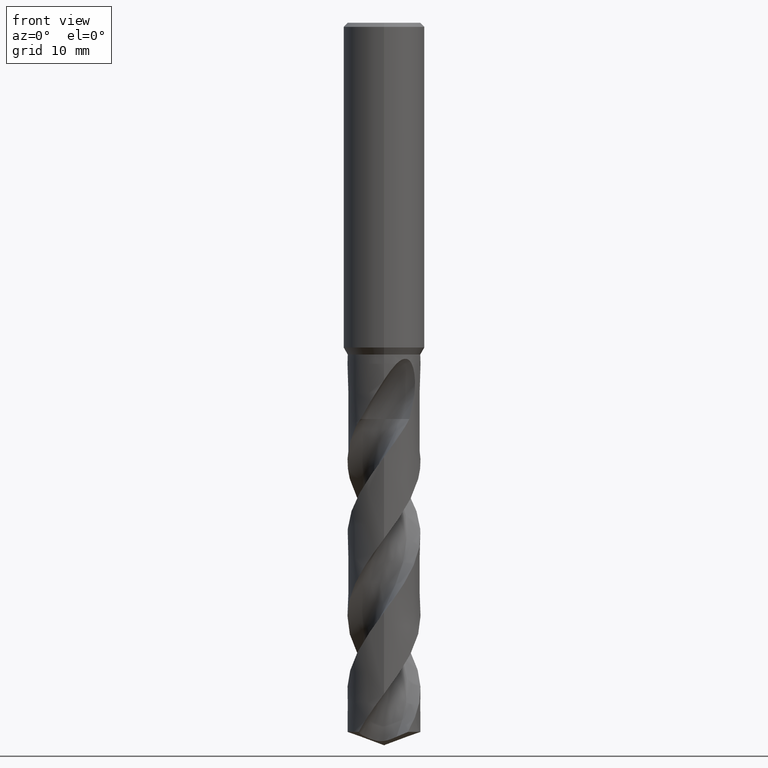
[diagram: clean part render]
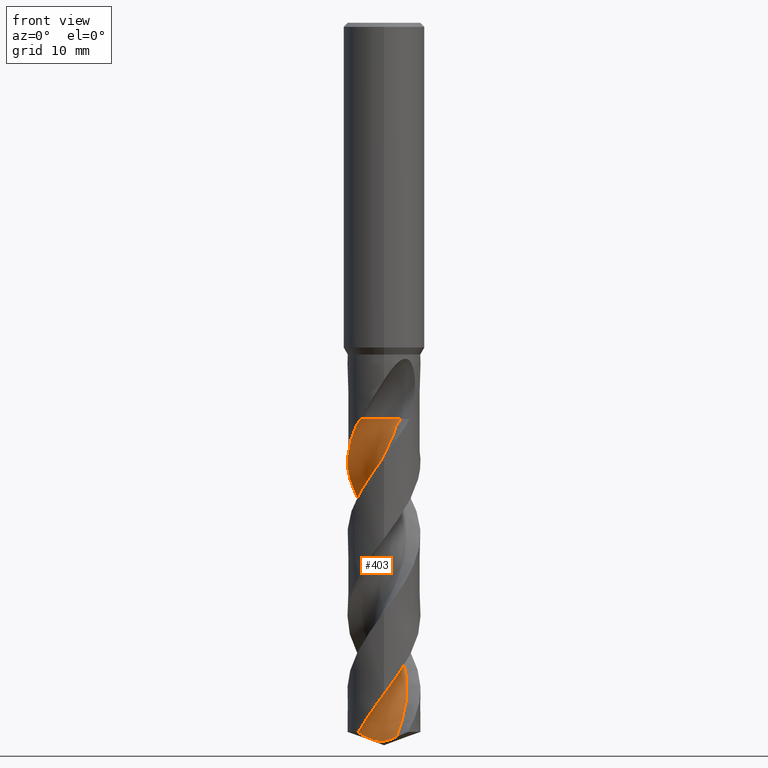
[diagram: same view with one face highlighted and labeled with its STEP entity id]
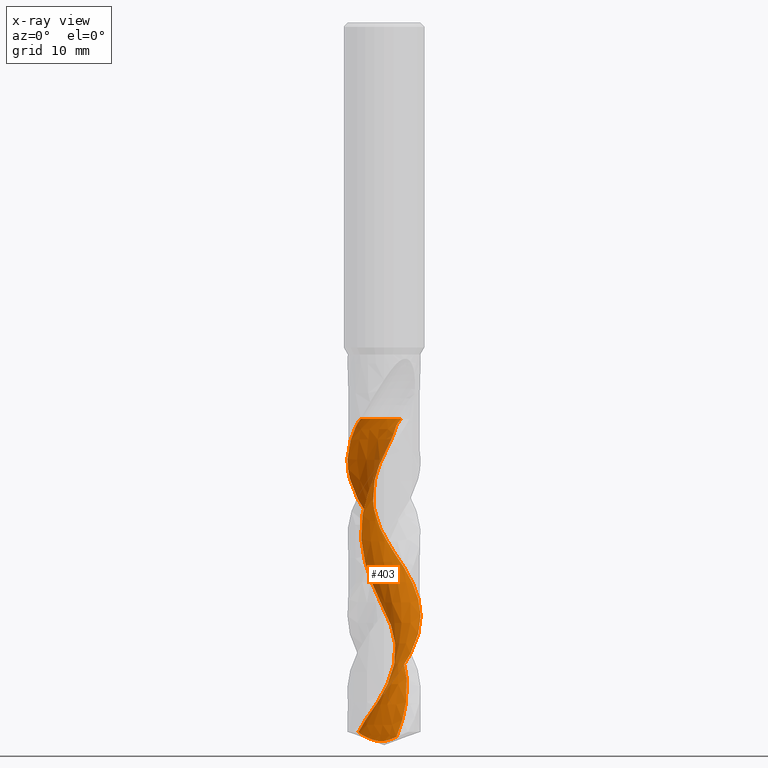
[diagram: x-ray of the same camera — body ghosted, the highlighted face saturated]
A machine part, front view. The second image highlights one B-rep face of the part: STEP entity #403.
The next image is the same camera in x-ray: the body ghosted, the highlighted face saturated — about 0% of this face is hidden behind the body in this view.
In plain terms, the highlighted face is a freeform B-spline surface patch.
Its self-contained STEP definition (entity closure, byte-faithful):
#331=EDGE_CURVE('',#585,#345,#830,.T.);
#345=VERTEX_POINT('',#845);
#373=VERTEX_POINT('',#874);
#377=VERTEX_POINT('',#879);
#397=EDGE_CURVE('',#499,#497,#900,.T.);
#403=ADVANCED_FACE('',(#906),#907,.F.);
#423=EDGE_CURVE('',#619,#373,#928,.T.);
#469=EDGE_CURVE('',#485,#499,#978,.T.);
#485=VERTEX_POINT('',#997);
#497=VERTEX_POINT('',#1009);
#499=VERTEX_POINT('',#1011);
#579=EDGE_CURVE('',#345,#485,#1102,.T.);
#585=VERTEX_POINT('',#1109);
#611=EDGE_CURVE('',#377,#619,#1138,.T.);
#619=VERTEX_POINT('',#1147);
#651=EDGE_CURVE('',#373,#585,#1182,.T.);
#699=EDGE_CURVE('',#497,#377,#1236,.T.);
#830=CIRCLE('',#1697,3.0);
#845=CARTESIAN_POINT('',(2.12132034348894,-2.22867965651107,-48.809));
#874=CARTESIAN_POINT('',(-2.86743909114319,-3.4680005995758,-48.809));
#879=CARTESIAN_POINT('',(-4.1656437967118E-015,-4.49998967546559,-82.6787048212013));
#900=B_SPLINE_CURVE_WITH_KNOTS('',3,(#1911,#1912,#1913,#1914,#1915,#1916,#1917,#1918,#1919,#1920,#1921,#1922,#1923,#1924,#1925,#1926,#1927,#1928,#1929,#1930),.UNSPECIFIED.,.F.,.F.,(4,2,2,2,2,2,2,2,2,4),(0.0,1.85362080994657,3.13298593557579,4.36435425095406,5.82300284725612,7.51970108473523,9.48767774855326,11.7347255687983,13.4478268751729,15.1656879047253),.UNSPECIFIED.);
#906=FACE_OUTER_BOUND('',#1937,.T.);
#907=B_SPLINE_SURFACE_WITH_KNOTS('',3,3,((#1938,#1939,#1940,#1941,#1942,#1943,#1944,#1945,#1946,#1947,#1948,#1949,#1950,#1951,#1952,#1953,#1954,#1955,#1956,#1957,#1958,#1959,#1960,#1961,#1962,#1963,#1964,#1965,#1966,#1967,#1968,#1969,#1970,#1971,#1972,#1973,#1974,#1975,#1976,#1977,#1978,#1979,#1980,#1981,#1982,#1983,#1984,#1985,#1986,#1987,#1988,#1989,#1990,#1991,#1992,#1993),(#1994,#1995,#1996,#1997,#1998,#1999,#2000,#2001,#2002,#2003,#2004,#2005,#2006,#2007,#2008,#2009,#2010,#2011,#2012,#2013,#2014,#2015,#2016,#2017,#2018,#2019,#2020,#2021,#2022,#2023,#2024,#2025,#2026,#2027,#2028,#2029,#2030,#2031,#2032,#2033,#2034,#2035,#2036,#2037,#2038,#2039,#2040,#2041,#2042,#2043,#2044,#2045,#2046,#2047,#2048,#2049),(#2050,#2051,#2052,#2053,#2054,#2055,#2056,#2057,#2058,#2059,#2060,#2061,#2062,#2063,#2064,#2065,#2066,#2067,#2068,#2069,#2070,#2071,#2072,#2073,#2074,#2075,#2076,#2077,#2078,#2079,#2080,#2081,#2082,#2083,#2084,#2085,#2086,#2087,#2088,#2089,#2090,#2091,#2092,#2093,#2094,#2095,#2096,#2097,#2098,#2099,#2100,#2101,#2102,#2103,#2104,#2105),(#2106,#2107,#2108,#2109,#2110,#2111,#2112,#2113,#2114,#2115,#2116,#2117,#2118,#2119,#2120,#2121,#2122,#2123,#2124,#2125,#2126,#2127,#2128,#2129,#2130,#2131,#2132,#2133,#2134,#2135,#2136,#2137,#2138,#2139,#2140,#2141,#2142,#2143,#2144,#2145,#2146,#2147,#2148,#2149,#2150,#2151,#2152,#2153,#2154,#2155,#2156,#2157,#2158,#2159,#2160,#2161),(#2162,#2163,#2164,#2165,#2166,#2167,#2168,#2169,#2170,#2171,#2172,#2173,#2174,#2175,#2176,#2177,#2178,#2179,#2180,#2181,#2182,#2183,#2184,#2185,#2186,#2187,#2188,#2189,#2190,#2191,#2192,#2193,#2194,#2195,#2196,#2197,#2198,#2199,#2200,#2201,#2202,#2203,#2204,#2205,#2206,#2207,#2208,#2209,#2210,#2211,#2212,#2213,#2214,#2215,#2216,#2217),(#2218,#2219,#2220,#2221,#2222,#2223,#2224,#2225,#2226,#2227,#2228,#2229,#2230,#2231,#2232,#2233,#2234,#2235,#2236,#2237,#2238,#2239,#2240,#2241,#2242,#2243,#2244,#2245,#2246,#2247,#2248,#2249,#2250,#2251,#2252,#2253,#2254,#2255,#2256,#2257,#2258,#2259,#2260,#2261,#2262,#2263,#2264,#2265,#2266,#2267,#2268,#2269,#2270,#2271,#2272,#2273),(#2274,#2275,#2276,#2277,#2278,#2279,#2280,#2281,#2282,#2283,#2284,#2285,#2286,#2287,#2288,#2289,#2290,#2291,#2292,#2293,#2294,#2295,#2296,#2297,#2298,#2299,#2300,#2301,#2302,#2303,#2304,#2305,#2306,#2307,#2308,#2309,#2310,#2311,#2312,#2313,#2314,#2315,#2316,#2317,#2318,#2319,#2320,#2321,#2322,#2323,#2324,#2325,#2326,#2327,#2328,#2329),(#2330,#2331,#2332,#2333,#2334,#2335,#2336,#2337,#2338,#2339,#2340,#2341,#2342,#2343,#2344,#2345,#2346,#2347,#2348,#2349,#2350,#2351,#2352,#2353,#2354,#2355,#2356,#2357,#2358,#2359,#2360,#2361,#2362,#2363,#2364,#2365,#2366,#2367,#2368,#2369,#2370,#2371,#2372,#2373,#2374,#2375,#2376,#2377,#2378,#2379,#2380,#2381,#2382,#2383,#2384,#2385),(#2386,#2387,#2388,#2389,#2390,#2391,#2392,#2393,#2394,#2395,#2396,#2397,#2398,#2399,#2400,#2401,#2402,#2403,#2404,#2405,#2406,#2407,#2408,#2409,#2410,#2411,#2412,#2413,#2414,#2415,#2416,#2417,#2418,#2419,#2420,#2421,#2422,#2423,#2424,#2425,#2426,#2427,#2428,#2429,#2430,#2431,#2432,#2433,#2434,#2435,#2436,#2437,#2438,#2439,#2440,#2441),(#2442,#2443,#2444,#2445,#2446,#2447,#2448,#2449,#2450,#2451,#2452,#2453,#2454,#2455,#2456,#2457,#2458,#2459,#2460,#2461,#2462,#2463,#2464,#2465,#2466,#2467,#2468,#2469,#2470,#2471,#2472,#2473,#2474,#2475,#2476,#2477,#2478,#2479,#2480,#2481,#2482,#2483,#2484,#2485,#2486,#2487,#2488,#2489,#2490,#2491,#2492,#2493,#2494,#2495,#2496,#2497),(#2498,#2499,#2500,#2501,#2502,#2503,#2504,#2505,#2506,#2507,#2508,#2509,#2510,#2511,#2512,#2513,#2514,#2515,#2516,#2517,#2518,#2519,#2520,#2521,#2522,#2523,#2524,#2525,#2526,#2527,#2528,#2529,#2530,#2531,#2532,#2533,#2534,#2535,#2536,#2537,#2538,#2539,#2540,#2541,#2542,#2543,#2544,#2545,#2546,#2547,#2548,#2549,#2550,#2551,#2552,#2553)),.UNSPECIFIED.,.F.,.F.,.F.,(4,1,1,1,1,1,1,1,4),(4,1,2,1,2,2,2,2,2,1,2,1,2,1,2,1,2,1,2,1,2,1,2,1,2,1,2,1,2,1,2,1,2,2,4),(-6.4419679081847E-018,0.392701122940261,0.785402245880522,1.17810336882078,1.57080449176104,1.96350561470131,2.35620673764157,2.74890786058183,3.14160898352209),(0.0,0.903448504208697,1.80689700841739,2.71034551262609,3.61379401683479,5.42069102525218,7.22758803366957,9.03448504208697,10.8413820505044,12.6482790589218,14.4551760673391,16.2620730757565,18.0689700841739,19.8758670925913,21.6827641010087,23.4896611094261,25.2965581178435,27.1034551262609,28.9103521346783,30.7172491430957,32.5241461515131,34.3310431599305,36.1379401683479,37.9448371767653,39.7517341851827,41.5586311936001,43.3655282020174,45.1724252104348,46.9793222188522,48.7862192272696,50.593116235687,52.4000132441044,54.2069102525218,56.0138072609392,57.8207042693566),.UNSPECIFIED.);
#928=B_SPLINE_CURVE_WITH_KNOTS('',3,(#2823,#2824,#2825,#2826,#2827,#2828,#2829,#2830,#2831,#2832,#2833,#2834,#2835,#2836,#2837,#2838,#2839,#2840,#2841,#2842,#2843,#2844,#2845,#2846,#2847,#2848,#2849,#2850,#2851,#2852,#2853,#2854,#2855,#2856,#2857,#2858,#2859,#2860,#2861,#2862,#2863,#2864,#2865,#2866,#2867,#2868,#2869,#2870,#2871,#2872,#2873,#2874,#2875,#2876,#2877,#2878,#2879,#2880,#2881,#2882,#2883,#2884,#2885,#2886,#2887,#2888,#2889,#2890,#2891,#2892,#2893,#2894,#2895,#2896,#2897,#2898,#2899,#2900,#2901,#2902),.UNSPECIFIED.,.F.,.F.,(4,2,2,2,2,2,2,2,2,2,2,2,2,2,2,2,2,2,2,2,2,2,2,2,2,2,2,2,2,2,2,2,2,2,2,2,2,2,2,4),(0.0,2.33680212910897,3.27924067887444,5.4592230345403,6.51468087450437,7.75993383269143,10.2223819571482,10.8330408138003,13.2978420873042,13.8876874891027,16.3592074409962,17.349163024776,19.5602745229972,20.1418048250435,22.6210733348974,23.4968128668138,25.9745633385095,26.5889144253962,29.0682132855279,29.6639600579411,32.1502943909303,33.248890918656,35.42230125904,35.9611128423146,38.376432469333,39.6141700968301,40.127823779556,40.6099819134643,42.407537256508,43.3447997838244,43.8793749484293,45.7265513681427,46.9465694555488,48.2985215131928,48.9744437533264,49.4647785574207,49.904773406731,50.4698778533234,51.6695420671085,53.4365331377016),.UNSPECIFIED.);
#978=B_SPLINE_CURVE_WITH_KNOTS('',3,(#3881,#3882,#3883,#3884,#3885,#3886,#3887,#3888,#3889,#3890,#3891,#3892,#3893,#3894,#3895,#3896,#3897,#3898,#3899,#3900),.UNSPECIFIED.,.F.,.F.,(4,2,2,2,2,2,2,2,2,4),(0.0,1.85362080994657,3.13298593557579,4.36435425095406,5.82300284725612,7.51970108473523,9.48767774855326,11.7347255687983,13.4478268751729,15.1656879047253),.UNSPECIFIED.);
#997=CARTESIAN_POINT('',(1.54485201707175,-2.38167831784299,-87.9667501493702));
#1009=CARTESIAN_POINT('',(-3.13168728307312,-3.2314911048985,-87.3621339458021));
#1011=CARTESIAN_POINT('',(1.87350444774525E-010,-1.4261631886154,-88.4809190501378));
#1102=B_SPLINE_CURVE_WITH_KNOTS('',3,(#4541,#4542,#4543,#4544,#4545,#4546,#4547,#4548,#4549,#4550,#4551,#4552,#4553,#4554,#4555,#4556,#4557,#4558,#4559,#4560,#4561,#4562,#4563,#4564,#4565,#4566,#4567,#4568,#4569,#4570,#4571,#4572,#4573,#4574,#4575,#4576,#4577,#4578,#4579,#4580,#4581,#4582,#4583,#4584,#4585,#4586,#4587,#4588,#4589,#4590,#4591,#4592,#4593,#4594,#4595,#4596),.UNSPECIFIED.,.F.,.F.,(4,1,2,1,2,2,2,2,2,1,2,1,2,1,2,1,2,1,2,1,2,1,2,1,2,1,2,1,2,1,2,1,2,2,4),(0.0,0.903448504208697,1.80689700841739,2.71034551262609,3.61379401683479,5.42069102525218,7.22758803366957,9.03448504208697,10.8413820505044,12.6482790589218,14.4551760673391,16.2620730757565,18.0689700841739,19.8758670925913,21.6827641010087,23.4896611094261,25.2965581178435,27.1034551262609,28.9103521346783,30.7172491430957,32.5241461515131,34.3310431599305,36.1379401683479,37.9448371767653,39.7517341851827,41.5586311936001,43.3655282020174,45.1724252104348,46.9793222188522,48.7862192272696,50.593116235687,52.4000132441044,54.2069102525218,56.0138072609392,57.8207042693566),.UNSPECIFIED.);
#1109=CARTESIAN_POINT('',(0.355950311101019,-1.37117636735104,-48.809));
#1138=B_SPLINE_CURVE_WITH_KNOTS('',3,(#4694,#4695,#4696,#4697,#4698,#4699,#4700,#4701,#4702,#4703,#4704,#4705,#4706,#4707,#4708,#4709,#4710,#4711,#4712,#4713,#4714,#4715,#4716,#4717,#4718,#4719,#4720,#4721,#4722,#4723,#4724,#4725,#4726,#4727,#4728,#4729,#4730,#4731,#4732,#4733,#4734,#4735,#4736,#4737,#4738,#4739,#4740,#4741,#4742,#4743,#4744,#4745,#4746,#4747,#4748,#4749,#4750,#4751,#4752,#4753,#4754,#4755,#4756,#4757,#4758,#4759,#4760,#4761,#4762,#4763,#4764,#4765,#4766,#4767,#4768,#4769,#4770,#4771,#4772,#4773),.UNSPECIFIED.,.F.,.F.,(4,2,2,2,2,2,2,2,2,2,2,2,2,2,2,2,2,2,2,2,2,2,2,2,2,2,2,2,2,2,2,2,2,2,2,2,2,2,2,4),(0.0,2.33680212910897,3.27924067887444,5.4592230345403,6.51468087450437,7.75993383269143,10.2223819571482,10.8330408138003,13.2978420873042,13.8876874891027,16.3592074409962,17.349163024776,19.5602745229972,20.1418048250435,22.6210733348974,23.4968128668138,25.9745633385095,26.5889144253962,29.0682132855279,29.6639600579411,32.1502943909303,33.248890918656,35.42230125904,35.9611128423146,38.376432469333,39.6141700968301,40.127823779556,40.6099819134643,42.407537256508,43.3447997838244,43.8793749484293,45.7265513681427,46.9465694555488,48.2985215131928,48.9744437533264,49.4647785574207,49.904773406731,50.4698778533234,51.6695420671085,53.4365331377016),.UNSPECIFIED.);
#1147=CARTESIAN_POINT('',(2.72577102974582E-014,4.49994754214656,-63.5661322044039));
#1182=CIRCLE('',#4869,3.0);
#1236=B_SPLINE_CURVE_WITH_KNOTS('',3,(#4975,#4976,#4977,#4978,#4979,#4980,#4981,#4982,#4983,#4984,#4985,#4986,#4987,#4988,#4989,#4990,#4991,#4992,#4993,#4994,#4995,#4996,#4997,#4998,#4999,#5000,#5001,#5002,#5003,#5004,#5005,#5006,#5007,#5008,#5009,#5010,#5011,#5012,#5013,#5014,#5015,#5016,#5017,#5018,#5019,#5020,#5021,#5022,#5023,#5024,#5025,#5026,#5027,#5028,#5029,#5030,#5031,#5032,#5033,#5034,#5035,#5036,#5037,#5038,#5039,#5040,#5041,#5042,#5043,#5044,#5045,#5046,#5047,#5048,#5049,#5050,#5051,#5052,#5053,#5054),.UNSPECIFIED.,.F.,.F.,(4,2,2,2,2,2,2,2,2,2,2,2,2,2,2,2,2,2,2,2,2,2,2,2,2,2,2,2,2,2,2,2,2,2,2,2,2,2,2,4),(0.0,2.33680212910897,3.27924067887444,5.4592230345403,6.51468087450437,7.75993383269143,10.2223819571482,10.8330408138003,13.2978420873042,13.8876874891027,16.3592074409962,17.349163024776,19.5602745229972,20.1418048250435,22.6210733348974,23.4968128668138,25.9745633385095,26.5889144253962,29.0682132855279,29.6639600579411,32.1502943909303,33.248890918656,35.42230125904,35.9611128423146,38.376432469333,39.6141700968301,40.127823779556,40.6099819134643,42.407537256508,43.3447997838244,43.8793749484293,45.7265513681427,46.9465694555488,48.2985215131928,48.9744437533264,49.4647785574207,49.904773406731,50.4698778533234,51.6695420671085,53.4365331377016),.UNSPECIFIED.);
#1697=AXIS2_PLACEMENT_3D('',#5310,#5311,#5312);
#1911=CARTESIAN_POINT('',(1.54485201707158,-2.38167831784302,-87.9667501493703));
#1912=CARTESIAN_POINT('',(1.10692306765807,-1.99665422131879,-88.1710598898023));
#1913=CARTESIAN_POINT('',(0.626472876458133,-1.70471023533339,-88.3543691116513));
#1914=CARTESIAN_POINT('',(-0.0825279464804017,-1.38254195303116,-88.5055020773375));
#1915=CARTESIAN_POINT('',(-0.340769290420274,-1.29764618621542,-88.5200225335347));
#1916=CARTESIAN_POINT('',(-0.834449825802921,-1.2080603238283,-88.4726528203819));
#1917=CARTESIAN_POINT('',(-1.06237816508949,-1.20457424526335,-88.4172305371599));
#1918=CARTESIAN_POINT('',(-1.52970073851163,-1.27268176261755,-88.2777889164408));
#1919=CARTESIAN_POINT('',(-1.76918974079153,-1.35868062386017,-88.1881570247464));
#1920=CARTESIAN_POINT('',(-2.24073076863184,-1.63367871784307,-87.9907672757654));
#1921=CARTESIAN_POINT('',(-2.45990442730707,-1.83381253221657,-87.8835940948456));
#1922=CARTESIAN_POINT('',(-2.84466143521984,-2.34228794255389,-87.6591865624106));
#1923=CARTESIAN_POINT('',(-2.99221029691041,-2.65772596310933,-87.5448175544669));
#1924=CARTESIAN_POINT('',(-3.18010681803438,-3.3760729820123,-87.3135567341247));
#1925=CARTESIAN_POINT('',(-3.20112236781079,-3.77965569003791,-87.2001380905775));
#1926=CARTESIAN_POINT('',(-3.1100313267231,-4.48264443984704,-87.015765161908));
#1927=CARTESIAN_POINT('',(-3.02868286446566,-4.78192229554087,-86.9417338491032));
#1928=CARTESIAN_POINT('',(-2.79053203836859,-5.35422982611624,-86.8042521591534));
#1929=CARTESIAN_POINT('',(-2.63405233615178,-5.62593872131452,-86.7411400480102));
#1930=CARTESIAN_POINT('',(-2.4453925297232,-5.8753770411416,-86.6837076128028));
#1937=EDGE_LOOP('',(#5390,#5391,#5392,#5393,#5394,#5395,#5396,#5397));
#1938=CARTESIAN_POINT('',(-2.12132034348893,-6.47132034348893,-48.809));
#1939=CARTESIAN_POINT('',(-2.33794256330254,-6.45692828059443,-49.0179578790837));
#1940=CARTESIAN_POINT('',(-2.77618473001633,-6.38250279755239,-49.4392840873907));
#1941=CARTESIAN_POINT('',(-3.20954040141029,-6.18657672247029,-49.8619605195439));
#1942=CARTESIAN_POINT('',(-3.6239891130204,-5.91690067966979,-50.2781073174299));
#1943=CARTESIAN_POINT('',(-4.02221322217055,-5.63460832481016,-50.6930173299012));
#1944=CARTESIAN_POINT('',(-4.39399153667617,-5.33501006382073,-51.1106386654057));
#1945=CARTESIAN_POINT('',(-4.93374689688247,-4.87638743779803,-51.7420503789226));
#1946=CARTESIAN_POINT('',(-5.2612859623867,-4.52976156773653,-52.1625285971901));
#1947=CARTESIAN_POINT('',(-5.82812468836688,-3.76050317228421,-52.9977519535906));
#1948=CARTESIAN_POINT('',(-6.07352832761216,-3.34919608504908,-53.4158186349795));
#1949=CARTESIAN_POINT('',(-6.4756274368793,-2.48563732402575,-54.2542584394727));
#1950=CARTESIAN_POINT('',(-6.63267614207627,-2.03396832378697,-54.6731917617527));
#1951=CARTESIAN_POINT('',(-6.84808232876476,-1.10562888576294,-55.5102087769181));
#1952=CARTESIAN_POINT('',(-6.90877087672705,-0.630762759268363,-55.9289429756299));
#1953=CARTESIAN_POINT('',(-6.92683291834184,0.323071214804245,-56.7665406124636));
#1954=CARTESIAN_POINT('',(-6.8508704649188,1.27629900533446,-57.6037019306839));
#1955=CARTESIAN_POINT('',(-6.5826991777448,2.1949600961981,-58.4416990538231));
#1956=CARTESIAN_POINT('',(-6.21551331347564,3.07590175520833,-59.2790513304885));
#1957=CARTESIAN_POINT('',(-5.76256050325702,3.91839709103689,-60.1159291632209));
#1958=CARTESIAN_POINT('',(-5.14805935227514,4.65220493669255,-60.9538517326454));
#1959=CARTESIAN_POINT('',(-4.45834077257784,5.31184305526714,-61.7913400517356));
#1960=CARTESIAN_POINT('',(-3.70545385931911,5.901804431634,-62.6283336976549));
#1961=CARTESIAN_POINT('',(-2.84814220429158,6.32726428108611,-63.4662723409391));
#1962=CARTESIAN_POINT('',(-1.95167057274619,6.65459180606281,-64.303711387377));
#1963=CARTESIAN_POINT('',(-1.02530252321432,6.89277665907981,-65.1406684709414));
#1964=CARTESIAN_POINT('',(-0.0692980426828902,6.93840798242254,-65.9786044140672));
#1965=CARTESIAN_POINT('',(0.883186672762026,6.87842806663619,-66.8160576090068));
#1966=CARTESIAN_POINT('',(1.82727094592575,6.72479299721342,-67.6530241260489));
#1967=CARTESIAN_POINT('',(2.72121136761725,6.38289720369121,-68.4909602112593));
#1968=CARTESIAN_POINT('',(3.56954410723979,5.94568859219223,-69.3284100394012));
#1969=CARTESIAN_POINT('',(4.3725976300717,5.42607056887425,-70.1653746072871));
#1970=CARTESIAN_POINT('',(5.05416688947292,4.75414071495507,-71.0033105446062));
#1971=CARTESIAN_POINT('',(5.65570708642301,4.01321264867947,-71.8407603669279));
#1972=CARTESIAN_POINT('',(6.18269944815085,3.21497681002973,-72.6777250873885));
#1973=CARTESIAN_POINT('',(6.53729127424553,2.3259936358946,-73.51566309406));
#1974=CARTESIAN_POINT('',(6.79089006585384,1.40593364360327,-74.3531166165596));
#1975=CARTESIAN_POINT('',(6.95320672612096,0.463303635106906,-75.1900824422947));
#1976=CARTESIAN_POINT('',(6.92119926675138,-0.49325303469741,-76.0280134170911));
#1977=CARTESIAN_POINT('',(6.78422245377171,-1.43774384562535,-76.8654548840234));
#1978=CARTESIAN_POINT('',(6.55458118907466,-2.3662765811675,-77.7024184267803));
#1979=CARTESIAN_POINT('',(6.14134277445678,-3.22956555875844,-78.540374746609));
#1980=CARTESIAN_POINT('',(5.63678287993959,-4.03965382931267,-79.3778577331567));
#1981=CARTESIAN_POINT('',(5.05377411665415,-4.79791698459448,-80.2148287757055));
#1982=CARTESIAN_POINT('',(4.32889265953421,-5.42281745051406,-81.0527060645708));
#1983=CARTESIAN_POINT('',(3.54177656020689,-5.96244797301313,-81.8900624090952));
#1984=CARTESIAN_POINT('',(2.70346240589123,-6.42312429829327,-82.727009315619));
#1985=CARTESIAN_POINT('',(1.78840408180039,-6.70422101597771,-83.5651073916044));
#1986=CARTESIAN_POINT('',(0.850478302819826,-6.88180006983721,-84.4028178736351));
#1987=CARTESIAN_POINT('',(-0.10215935941486,-6.96686026366057,-85.2398830531311));
#1988=CARTESIAN_POINT('',(-1.05255127594069,-6.85874743006669,-86.0775733275822));
#1989=CARTESIAN_POINT('',(-1.98248907499897,-6.64804522879738,-86.9145857687305));
#1990=CARTESIAN_POINT('',(-2.43627463669047,-6.49553097430954,-87.3331248668563));
#1991=CARTESIAN_POINT('',(-3.30214006040918,-6.09593158536156,-88.1702831124138));
#1992=CARTESIAN_POINT('',(-3.71407447099903,-5.8566940011508,-88.5881581811338));
#1993=CARTESIAN_POINT('',(-4.0995928439828,-5.58238084599861,-89.0066871198355));
#1994=CARTESIAN_POINT('',(-2.39899035332033,-6.19362710001575,-48.8090000000003));
#1995=CARTESIAN_POINT('',(-2.61533982217487,-6.17896230716969,-49.0179499505009));
#1996=CARTESIAN_POINT('',(-3.04723909502232,-6.09800105211113,-49.4396505734586));
#1997=CARTESIAN_POINT('',(-3.46114320595868,-5.88456830774428,-49.862827774779));
#1998=CARTESIAN_POINT('',(-3.84804964819589,-5.59392969362123,-50.2785903103609));
#1999=CARTESIAN_POINT('',(-4.21955208026853,-5.29414642677268,-50.6929666043708));
#2000=CARTESIAN_POINT('',(-4.56723931383134,-4.98237071674704,-51.1104474566858));
#2001=CARTESIAN_POINT('',(-5.07295683117369,-4.50834525049869,-51.7423314924724));
#2002=CARTESIAN_POINT('',(-5.3755766038518,-4.1530339479179,-52.1630482346253));
#2003=CARTESIAN_POINT('',(-5.88823296545012,-3.37143631742391,-52.9979583200882));
#2004=CARTESIAN_POINT('',(-6.10669187238783,-2.9569704324175,-53.4159348123065));
#2005=CARTESIAN_POINT('',(-6.45489045397869,-2.09255913076529,-54.2545130842767));
#2006=CARTESIAN_POINT('',(-6.58510484048032,-1.64321676093547,-54.6734749424971));
#2007=CARTESIAN_POINT('',(-6.74724439399501,-0.725127487488793,-55.5104314000241));
#2008=CARTESIAN_POINT('',(-6.78203023339347,-0.258073784312097,-55.9291669222045));
#2009=CARTESIAN_POINT('',(-6.74971946785313,0.674626092148382,-56.7667850623645));
#2010=CARTESIAN_POINT('',(-6.62658554696233,1.60195174609817,-57.6039061727135));
#2011=CARTESIAN_POINT('',(-6.3172861365672,2.48568901280859,-58.4419791929319));
#2012=CARTESIAN_POINT('',(-5.91224272908303,3.32688800601391,-59.2793177446932));
#2013=CARTESIAN_POINT('',(-5.42638712615915,4.1265947583195,-60.1161159670521));
#2014=CARTESIAN_POINT('',(-4.78825233619651,4.81190723210782,-60.9541041132567));
#2015=CARTESIAN_POINT('',(-4.07983332248103,5.41999926029102,-61.7915976702186));
#2016=CARTESIAN_POINT('',(-3.31398742484903,5.95759187285181,-62.6285277797477));
#2017=CARTESIAN_POINT('',(-2.45448932849413,6.32914339365823,-63.4665342484351));
#2018=CARTESIAN_POINT('',(-1.56157685170194,6.60174518809808,-64.3039716422825));
#2019=CARTESIAN_POINT('',(-0.644357935906615,6.78676090659554,-65.1408601216969));
#2020=CARTESIAN_POINT('',(0.292014164521583,6.78214020890409,-65.9788635395635));
#2021=CARTESIAN_POINT('',(1.21927521257387,6.67346375892659,-66.8163170146032));
#2022=CARTESIAN_POINT('',(2.13364002467656,6.47480059022709,-67.653216291579));
#2023=CARTESIAN_POINT('',(2.98942972979816,6.09475657290687,-68.4912197971517));
#2024=CARTESIAN_POINT('',(3.79511571893149,5.62306913947378,-69.3286695132536));
#2025=CARTESIAN_POINT('',(4.55287704800891,5.07413658617489,-70.1655664880823));
#2026=CARTESIAN_POINT('',(5.18419237323177,4.38257712659848,-71.003569869028));
#2027=CARTESIAN_POINT('',(5.73283279809444,3.62718478996597,-71.8410195793097));
#2028=CARTESIAN_POINT('',(6.20657522188718,2.82027673126761,-72.6779168038483));
#2029=CARTESIAN_POINT('',(6.50725988979547,1.93348345320607,-73.5159224984432));
#2030=CARTESIAN_POINT('',(6.70660126420413,1.02140630283489,-74.3533763570629));
#2031=CARTESIAN_POINT('',(6.81666414035242,0.0922048119393105,-75.1902746260995));
#2032=CARTESIAN_POINT('',(6.73616081628091,-0.840710769102194,-76.0282723933467));
#2033=CARTESIAN_POINT('',(6.55269278110971,-1.75611448166067,-76.8657128519187));
#2034=CARTESIAN_POINT('',(6.28058082406168,-2.65137663741301,-77.702609216565));
#2035=CARTESIAN_POINT('',(5.83241010857801,-3.47354683410591,-78.5406356866088));
#2036=CARTESIAN_POINT('',(5.29693895688496,-4.23832970018366,-79.3781220343575));
#2037=CARTESIAN_POINT('',(4.68838415449384,-4.94907215266236,-80.2150244625714));
#2038=CARTESIAN_POINT('',(3.94801568578776,-5.52230712608085,-81.0529614439483));
#2039=CARTESIAN_POINT('',(3.15077222476288,-6.00806405252681,-81.8903087132299));
#2040=CARTESIAN_POINT('',(2.30812178991899,-6.41496218375263,-82.727192873914));
#2041=CARTESIAN_POINT('',(1.3996214125225,-6.64244094144345,-83.5653783955753));
#2042=CARTESIAN_POINT('',(0.474082450585547,-6.76649767276651,-84.4031088207321));
#2043=CARTESIAN_POINT('',(-0.460909569291854,-6.80058974751505,-85.2400909572904));
#2044=CARTESIAN_POINT('',(-1.38392655174621,-6.64626755257659,-86.0778124914102));
#2045=CARTESIAN_POINT('',(-2.28132982960574,-6.39182025835957,-86.9148025245518));
#2046=CARTESIAN_POINT('',(-2.71673319715114,-6.21929248005797,-87.3333555376473));
#2047=CARTESIAN_POINT('',(-3.54152810559925,-5.78342910730384,-88.17056375306));
#2048=CARTESIAN_POINT('',(-3.93185842830781,-5.52889851733611,-88.5883714763741));
#2049=CARTESIAN_POINT('',(-4.29499639835101,-5.24174677871563,-89.0069215906423));
#2050=CARTESIAN_POINT('',(-2.84378492246131,-5.52793832397287,-48.809));
#2051=CARTESIAN_POINT('',(-3.0594805417017,-5.51283665083388,-49.0179369085118));
#2052=CARTESIAN_POINT('',(-3.47609766912888,-5.4213289926595,-49.4402533263525));
#2053=CARTESIAN_POINT('',(-3.84414543344072,-5.18062484113147,-49.864254128951));
#2054=CARTESIAN_POINT('',(-4.16764261510686,-4.85902289618424,-50.2793846789511));
#2055=CARTESIAN_POINT('',(-4.47875733357495,-4.53489163167963,-50.6928831762465));
#2056=CARTESIAN_POINT('',(-4.77343006915869,-4.2083462050246,-51.1101329809851));
#2057=CARTESIAN_POINT('',(-5.20496107336389,-3.71705720504485,-51.7427938316432));
#2058=CARTESIAN_POINT('',(-5.45429891785494,-3.35428793538271,-52.1639028747822));
#2059=CARTESIAN_POINT('',(-5.85370647111242,-2.56956359805132,-52.9982977222571));
#2060=CARTESIAN_POINT('',(-6.01703113960086,-2.15949639679624,-53.4161259037497));
#2061=CARTESIAN_POINT('',(-6.25711231754418,-1.31481459563365,-54.2549318756487));
#2062=CARTESIAN_POINT('',(-6.33459458445901,-0.880795514673822,-54.6739406736882));
#2063=CARTESIAN_POINT('',(-6.39429942598862,-0.00438450760800374,-55.5107975530381));
#2064=CARTESIAN_POINT('',(-6.38039746422857,0.436747085016445,-55.9295352276784));
#2065=CARTESIAN_POINT('',(-6.2557665697163,1.30715624655333,-56.767187118026));
#2066=CARTESIAN_POINT('',(-6.04860991754615,2.16393014118704,-57.604242090754));
#2067=CARTESIAN_POINT('',(-5.6709594779354,2.96147932946052,-58.4424399054457));
#2068=CARTESIAN_POINT('',(-5.20602115862439,3.70815515599017,-59.279755936105));
#2069=CARTESIAN_POINT('',(-4.67138930139736,4.40921850832983,-60.1164231757143));
#2070=CARTESIAN_POINT('',(-4.00528201988445,4.98816239492322,-60.9545192187819));
#2071=CARTESIAN_POINT('',(-3.27996799876854,5.48574751533573,-61.7920213487179));
#2072=CARTESIAN_POINT('',(-2.50903478810793,5.91347129779103,-62.6288470106768));
#2073=CARTESIAN_POINT('',(-1.66660205362691,6.17635939572098,-63.4669649656535));
#2074=CARTESIAN_POINT('',(-0.802568851069221,6.34094812957083,-64.3043997137999));
#2075=CARTESIAN_POINT('',(0.0752122122068017,6.42328623535195,-65.1411753609242));
#2076=CARTESIAN_POINT('',(0.952344443975654,6.32598976137058,-65.9792896102252));
#2077=CARTESIAN_POINT('',(1.80980393032145,6.12997123871285,-66.8167437603266));
#2078=CARTESIAN_POINT('',(2.64683628450666,5.85308923399312,-67.6535322738662));
#2079=CARTESIAN_POINT('',(3.4111704705089,5.41193594596143,-68.4916467610948));
#2080=CARTESIAN_POINT('',(4.11786995228086,4.88826445415598,-69.3290962351863));
#2081=CARTESIAN_POINT('',(4.77340862256382,4.29872627001541,-70.1658820899316));
#2082=CARTESIAN_POINT('',(5.29643127643204,3.58789998093287,-71.0039963633014));
#2083=CARTESIAN_POINT('',(5.73354251062065,2.82462153292545,-71.841445910852));
#2084=CARTESIAN_POINT('',(6.09735885923197,2.02154826200973,-72.6782320867295));
#2085=CARTESIAN_POINT('',(6.29112274717379,1.16057073911766,-73.5163491819161));
#2086=CARTESIAN_POINT('',(6.38514661827372,0.286032120802159,-74.3538034994991));
#2087=CARTESIAN_POINT('',(6.39606397043719,-0.59553854672472,-75.1905907312452));
#2088=CARTESIAN_POINT('',(6.22799053381466,-1.46189686815438,-76.0286983231362));
#2089=CARTESIAN_POINT('',(5.96312649721238,-2.30065078916664,-76.8661371285274));
#2090=CARTESIAN_POINT('',(5.6193215586296,-3.11249670535846,-77.7029230404045));
#2091=CARTESIAN_POINT('',(5.11765239868491,-3.83855537859121,-78.5410647737646));
#2092=CARTESIAN_POINT('',(4.53838801306333,-4.50045422433926,-79.3785567995761));
#2093=CARTESIAN_POINT('',(3.89764920262076,-5.10601654507299,-80.2153461885311));
#2094=CARTESIAN_POINT('',(3.14685869042431,-5.56978367145569,-81.0533816173194));
#2095=CARTESIAN_POINT('',(2.35078833187218,-5.94378880769074,-81.8907136474405));
#2096=CARTESIAN_POINT('',(1.52085283007507,-6.24142881189744,-82.7274949154558));
#2097=CARTESIAN_POINT('',(0.646787449989874,-6.36430209298316,-83.56582397178));
#2098=CARTESIAN_POINT('',(-0.232699214819959,-6.38626247433455,-84.4035874727486));
#2099=CARTESIAN_POINT('',(-1.11213918501616,-6.32545683025643,-85.2404329423369));
#2100=CARTESIAN_POINT('',(-1.96204204958137,-6.08962138640387,-86.0782056013515));
#2101=CARTESIAN_POINT('',(-2.77699415475105,-5.76064011120178,-86.9151592553601));
#2102=CARTESIAN_POINT('',(-3.16768224094998,-5.55540365669111,-87.3337349872983));
#2103=CARTESIAN_POINT('',(-3.89593252554041,-5.06335979821024,-88.1710252458291));
#2104=CARTESIAN_POINT('',(-4.23698226080889,-4.78684083157755,-88.5887223407181));
#2105=CARTESIAN_POINT('',(-4.55026345304374,-4.48291719483939,-89.0073072194984));
#2106=CARTESIAN_POINT('',(-3.07810011242367,-4.35000275976034,-48.809));
#2107=CARTESIAN_POINT('',(-3.2926387504535,-4.33467093865266,-49.0179287686123));
#2108=CARTESIAN_POINT('',(-3.68202161692491,-4.23731955093174,-49.4406295985752));
#2109=CARTESIAN_POINT('',(-3.97086169676839,-3.98514150854344,-49.8651445440352));
#2110=CARTESIAN_POINT('',(-4.18870228461048,-3.6570276452231,-50.27988056914));
#2111=CARTESIAN_POINT('',(-4.40214618136597,-3.33381806042454,-50.6928310974474));
#2112=CARTESIAN_POINT('',(-4.61486594718491,-3.01723566026277,-51.1099366642121));
#2113=CARTESIAN_POINT('',(-4.93366918489909,-2.5446075711242,-51.7430824560733));
#2114=CARTESIAN_POINT('',(-5.10488082890375,-2.2020880318488,-52.1644363940872));
#2115=CARTESIAN_POINT('',(-5.34553798182638,-1.4780416133022,-52.9985095941384));
#2116=CARTESIAN_POINT('',(-5.43497536758526,-1.10572067781432,-53.4162451862703));
#2117=CARTESIAN_POINT('',(-5.53653884833927,-0.350447573948176,-54.2551933177158));
#2118=CARTESIAN_POINT('',(-5.54973426632923,0.032063482467064,-54.6742314177491));
#2119=CARTESIAN_POINT('',(-5.49139694929526,0.791908239675549,-55.5110261198436));
#2120=CARTESIAN_POINT('',(-5.42489760444856,1.16916416392534,-55.9297651582804));
#2121=CARTESIAN_POINT('',(-5.20807529127671,1.90024595345908,-56.7674380919877));
#2122=CARTESIAN_POINT('',(-4.92496918397082,2.61100632976079,-57.6044517960268));
#2123=CARTESIAN_POINT('',(-4.50206520239799,3.24986759177435,-58.442727510847));
#2124=CARTESIAN_POINT('',(-4.00837778643937,3.83115777077651,-59.2800294792083));
#2125=CARTESIAN_POINT('',(-3.46277187819572,4.36750775086051,-60.1166149646666));
#2126=CARTESIAN_POINT('',(-2.81895764982897,4.7829742593813,-60.954778331023));
#2127=CARTESIAN_POINT('',(-2.13366505935936,5.11770553329283,-61.7922858546134));
#2128=CARTESIAN_POINT('',(-1.41875170305093,5.39023805567777,-62.6290462752841));
#2129=CARTESIAN_POINT('',(-0.66234885832794,5.51232232745997,-63.4672338597199));
#2130=CARTESIAN_POINT('',(0.0996544410308766,5.54379037087348,-64.304666925987));
#2131=CARTESIAN_POINT('',(0.863834836736932,5.50646357652678,-65.1413721323979));
#2132=CARTESIAN_POINT('',(1.60566388861204,5.31473141538438,-65.9795556422784));
#2133=CARTESIAN_POINT('',(2.31624413521755,5.03773238274498,-66.8170101062449));
#2134=CARTESIAN_POINT('',(3.00119707019348,4.69683720838738,-67.6537295716336));
#2135=CARTESIAN_POINT('',(3.60370014387595,4.22349077192456,-68.4919132645499));
#2136=CARTESIAN_POINT('',(4.14336935665878,3.68459628556157,-69.329362652472));
#2137=CARTESIAN_POINT('',(4.633924427026,3.09746264879661,-70.1660790945983));
#2138=CARTESIAN_POINT('',(4.9958005232211,2.42209943151978,-71.0042625985633));
#2139=CARTESIAN_POINT('',(5.27381271064386,1.71191494992311,-71.8417120594309));
#2140=CARTESIAN_POINT('',(5.48748018968321,0.977259868210827,-72.6784289128874));
#2141=CARTESIAN_POINT('',(5.54787862965664,0.213439324818777,-73.5166155190726));
#2142=CARTESIAN_POINT('',(5.51748853825754,-0.548615641065651,-74.3540701705067));
#2143=CARTESIAN_POINT('',(5.41833943310838,-1.30725832326251,-75.190788053306));
#2144=CARTESIAN_POINT('',(5.16710698082605,-2.03110298511149,-76.0289642083931));
#2145=CARTESIAN_POINT('',(4.83343453250554,-2.71689980884395,-76.8664019919249));
#2146=CARTESIAN_POINT('',(4.43815325088306,-3.37198079820762,-77.7031189337321));
#2147=CARTESIAN_POINT('',(3.91751179656639,-3.93412444432186,-78.5413326578359));
#2148=CARTESIAN_POINT('',(3.33661375937158,-4.4282933062106,-79.3788281827696));
#2149=CARTESIAN_POINT('',(2.71164903297154,-4.86960761410981,-80.2155470874038));
#2150=CARTESIAN_POINT('',(2.00925448811966,-5.17567683280121,-81.0536438195421));
#2151=CARTESIAN_POINT('',(1.27896137823926,-5.39547487588004,-81.8909665257181));
#2152=CARTESIAN_POINT('',(0.529367900579003,-5.54898943196094,-82.7276833874709));
#2153=CARTESIAN_POINT('',(-0.236923945741477,-5.54665398681394,-83.566102191911));
#2154=CARTESIAN_POINT('',(-0.993976569929075,-5.45355207908921,-84.4038862100528));
#2155=CARTESIAN_POINT('',(-1.74194871578813,-5.29311433787499,-85.2406464323957));
#2156=CARTESIAN_POINT('',(-2.44372745012674,-4.98627828023757,-86.0784510630387));
#2157=CARTESIAN_POINT('',(-3.1016212909425,-4.6013292268658,-86.9153818882099));
#2158=CARTESIAN_POINT('',(-3.41156048020349,-4.37642962546826,-87.3339718139136));
#2159=CARTESIAN_POINT('',(-3.97375589305811,-3.86194499410639,-88.1713133847432));
#2160=CARTESIAN_POINT('',(-4.23388349448292,-3.58324130728302,-88.5889412933677));
#2161=CARTESIAN_POINT('',(-4.46843855257622,-3.2846933303647,-89.0075479516298));
#2162=CARTESIAN_POINT('',(-2.84380029130926,-3.17206413847803,-48.809));
#2163=CARTESIAN_POINT('',(-3.05718194886141,-3.15696244532657,-49.0179332887276));
#2164=CARTESIAN_POINT('',(-3.41916726804097,-3.0646344166192,-49.4404206460202));
#2165=CARTESIAN_POINT('',(-3.63043999043817,-2.83216663190681,-49.8646500754445));
#2166=CARTESIAN_POINT('',(-3.74817338353632,-2.538470271843,-50.2796051899807));
#2167=CARTESIAN_POINT('',(-3.87173331675058,-2.25348981224611,-50.6928600181267));
#2168=CARTESIAN_POINT('',(-4.01255142816188,-1.97747408143319,-51.1100456830386));
#2169=CARTESIAN_POINT('',(-4.23434907592192,-1.56522571924647,-51.7429221771151));
#2170=CARTESIAN_POINT('',(-4.34113133798809,-1.27131171563682,-52.1641401176441));
#2171=CARTESIAN_POINT('',(-4.45834248500986,-0.664076205683323,-52.9983919374172));
#2172=CARTESIAN_POINT('',(-4.49396192366005,-0.354903861874503,-53.4161789461986));
#2173=CARTESIAN_POINT('',(-4.50176730529677,0.264757882007212,-54.2550481325172));
#2174=CARTESIAN_POINT('',(-4.47528083554128,0.575080203820907,-54.6740699641289));
#2175=CARTESIAN_POINT('',(-4.35249501380606,1.18205878421856,-55.51089918799));
#2176=CARTESIAN_POINT('',(-4.26184635080666,1.48017309774872,-55.9296374752023));
#2177=CARTESIAN_POINT('',(-4.01316885421944,2.04725302840504,-56.7672987175104));
#2178=CARTESIAN_POINT('',(-3.71577188714043,2.59404981321032,-57.6043353388951));
#2179=CARTESIAN_POINT('',(-3.31178660503065,3.06898490364847,-58.4425678053789));
#2180=CARTESIAN_POINT('',(-2.85482915690702,3.48647691367153,-59.2798775657844));
#2181=CARTESIAN_POINT('',(-2.36211796667512,3.86645199632422,-60.1165084694815));
#2182=CARTESIAN_POINT('',(-1.80146015653731,4.13941652063811,-60.9546344290621));
#2183=CARTESIAN_POINT('',(-1.21546425993787,4.33900617791805,-61.7921389791712));
#2184=CARTESIAN_POINT('',(-0.611695928683256,4.48959871265423,-62.6289356162804));
#2185=CARTESIAN_POINT('',(0.0113422508800908,4.51451971735228,-63.4670845310956));
#2186=CARTESIAN_POINT('',(0.628138975783133,4.46204571314228,-64.3045185422643));
#2187=CARTESIAN_POINT('',(1.24157204313846,4.35763632058375,-65.1412628501053));
#2188=CARTESIAN_POINT('',(1.82225829327352,4.13043556898742,-65.9794079239775));
#2189=CARTESIAN_POINT('',(2.36614989122454,3.83482886928463,-66.8168621826092));
#2190=CARTESIAN_POINT('',(2.88610287998528,3.49299184285101,-67.6536200090922));
#2191=CARTESIAN_POINT('',(3.32677387878678,3.05183318358184,-68.4917652814154));
#2192=CARTESIAN_POINT('',(3.70630172805874,2.56279451326149,-69.3292146922546));
#2193=CARTESIAN_POINT('',(4.0453520705545,2.04101921126119,-70.1659696964174));
#2194=CARTESIAN_POINT('',(4.27191953934708,1.46008792713029,-71.0041147581064));
#2195=CARTESIAN_POINT('',(4.42326175232264,0.859840684918102,-71.8415642546871));
#2196=CARTESIAN_POINT('',(4.52439246384818,0.245855544678135,-72.6783196208129));
#2197=CARTESIAN_POINT('',(4.4987579574098,-0.377166821039327,-73.5164676018327));
#2198=CARTESIAN_POINT('',(4.39647028533996,-0.98768913694354,-74.353922095842));
#2199=CARTESIAN_POINT('',(4.24267580945829,-1.59064036772021,-75.1906784835362));
#2200=CARTESIAN_POINT('',(3.96915237597215,-2.1509960476759,-76.0288165265423));
#2201=CARTESIAN_POINT('',(3.63044372088874,-2.66914707480076,-76.8662549366279));
#2202=CARTESIAN_POINT('',(3.24759616321494,-3.15969696167243,-77.7030101254576));
#2203=CARTESIAN_POINT('',(2.77215445078675,-3.56314264782029,-78.5411839142513));
#2204=CARTESIAN_POINT('',(2.25393487695192,-3.90172416661653,-79.3786774586329));
#2205=CARTESIAN_POINT('',(1.70639884631471,-4.19732964126414,-80.215435526687));
#2206=CARTESIAN_POINT('',(1.1090649049436,-4.37622559946591,-81.0534982249565));
#2207=CARTESIAN_POINT('',(0.498554790426413,-4.47872692643573,-81.8908260840598));
#2208=CARTESIAN_POINT('',(-0.121657650275005,-4.52983272140189,-82.727578750994));
#2209=CARTESIAN_POINT('',(-0.740464386159938,-4.45306295878335,-83.5659476492868));
#2210=CARTESIAN_POINT('',(-1.34037019227366,-4.30051114058899,-84.4037203547147));
#2211=CARTESIAN_POINT('',(-1.92875415771561,-4.09833618169923,-85.2405278576768));
#2212=CARTESIAN_POINT('',(-2.46651329415532,-3.78258908465157,-86.0783147493333));
#2213=CARTESIAN_POINT('',(-2.95788627866714,-3.40603646381471,-86.9152582580574));
#2214=CARTESIAN_POINT('',(-3.1856984863094,-3.19387190424719,-87.3338402551006));
#2215=CARTESIAN_POINT('',(-3.5858916327913,-2.72220144143911,-88.1711534179182));
#2216=CARTESIAN_POINT('',(-3.77042084298095,-2.47244707658316,-88.5888196760049));
#2217=CARTESIAN_POINT('',(-3.93429970836939,-2.20899287070042,-89.007414267446));
#2218=CARTESIAN_POINT('',(-2.17655584899827,-2.17345477746903,-48.8089999999999));
#2219=CARTESIAN_POINT('',(-2.3889566632562,-2.15900846220406,-49.0179497831012));
#2220=CARTESIAN_POINT('',(-2.7275522262811,-2.08180609744115,-49.4396582778839));
#2221=CARTESIAN_POINT('',(-2.87470696767343,-1.89723198776972,-49.8628460044399));
#2222=CARTESIAN_POINT('',(-2.91312312938873,-1.67364274188721,-50.2786004637574));
#2223=CARTESIAN_POINT('',(-2.96827011752505,-1.45837876101985,-50.692965536152));
#2224=CARTESIAN_POINT('',(-3.05818438374053,-1.24735736291222,-51.1104434406454));
#2225=CARTESIAN_POINT('',(-3.21346697597053,-0.928015198244872,-51.7423373950822));
#2226=CARTESIAN_POINT('',(-3.27932557564342,-0.7036626800826,-52.16305915846));
#2227=CARTESIAN_POINT('',(-3.32718883793411,-0.251587518997283,-52.9979626573077));
#2228=CARTESIAN_POINT('',(-3.33725305056413,-0.0213521729790406,-53.4159372585517));
#2229=CARTESIAN_POINT('',(-3.31033388618288,0.43714135422543,-54.2545184329447));
#2230=CARTESIAN_POINT('',(-3.27481175767246,0.665584411212002,-54.6734808918561));
#2231=CARTESIAN_POINT('',(-3.15098290227123,1.10666964925662,-55.5104360829757));
#2232=CARTESIAN_POINT('',(-3.06830953094186,1.32242511377522,-55.9291716225406));
#2233=CARTESIAN_POINT('',(-2.85296279821672,1.72579674313672,-56.7667902080127));
#2234=CARTESIAN_POINT('',(-2.60510924054851,2.11564209384923,-57.6039104677859));
#2235=CARTESIAN_POINT('',(-2.28133467762547,2.44636930150657,-58.4419850709099));
#2236=CARTESIAN_POINT('',(-1.92099438844903,2.72658765485963,-59.279323355604));
#2237=CARTESIAN_POINT('',(-1.53699387462738,2.98233322557707,-60.1161198860869));
#2238=CARTESIAN_POINT('',(-1.10769588971604,3.15546601723256,-60.9541094231285));
#2239=CARTESIAN_POINT('',(-0.665154792855408,3.26820058245593,-61.7916030808434));
#2240=CARTESIAN_POINT('',(-0.210735648991004,3.3486688430161,-62.62853186674));
#2241=CARTESIAN_POINT('',(0.251906861695128,3.33485954467053,-63.4665397440405));
#2242=CARTESIAN_POINT('',(0.702426943289412,3.26040164637559,-64.3039771228516));
#2243=CARTESIAN_POINT('',(1.15091617508096,3.15170480730839,-65.1408641664181));
#2244=CARTESIAN_POINT('',(1.56915279087889,2.95340237866653,-65.9788689444941));
#2245=CARTESIAN_POINT('',(1.95192341543951,2.70439373389566,-66.8163225095111));
#2246=CARTESIAN_POINT('',(2.31907594857493,2.42482955630385,-67.6532202992781));
#2247=CARTESIAN_POINT('',(2.62255161187499,2.07533926918641,-68.4912252752503));
#2248=CARTESIAN_POINT('',(2.87320734326604,1.69364502947082,-69.3286749461173));
#2249=CARTESIAN_POINT('',(3.09729727524055,1.29023155471269,-70.1655705374901));
#2250=CARTESIAN_POINT('',(3.23499377058415,0.84832449237238,-71.0035753097261));
#2251=CARTESIAN_POINT('',(3.31137964056035,0.398120661105741,-71.8410250385817));
#2252=CARTESIAN_POINT('',(3.35471855649893,-0.0613138918524271,-72.6779208306027));
#2253=CARTESIAN_POINT('',(3.30348148998522,-0.521332345130013,-73.5159279472947));
#2254=CARTESIAN_POINT('',(3.19275846937809,-0.964342720108542,-74.3533818209559));
#2255=CARTESIAN_POINT('',(3.04805906483546,-1.40254189900219,-75.1902786540583));
#2256=CARTESIAN_POINT('',(2.8165063297379,-1.8033232197498,-76.0282778569321));
#2257=CARTESIAN_POINT('',(2.53730037791034,-2.16466259936265,-76.8657182548232));
#2258=CARTESIAN_POINT('',(2.22890369518666,-2.50796380141324,-77.7026132379541));
#2259=CARTESIAN_POINT('',(1.85595240299965,-2.78208919888217,-78.5406411697277));
#2260=CARTESIAN_POINT('',(1.45518112355696,-3.00091299170944,-79.3781275921418));
#2261=CARTESIAN_POINT('',(1.03494043245099,-3.19153191509206,-80.2150285527263));
#2262=CARTESIAN_POINT('',(0.583337048134304,-3.29314041611452,-81.0529668567862));
#2263=CARTESIAN_POINT('',(0.128379619182886,-3.33311296410588,-81.8903138460902));
#2264=CARTESIAN_POINT('',(-0.333110067306946,-3.33911763660698,-82.7271967785634));
#2265=CARTESIAN_POINT('',(-0.787173619120324,-3.2500200431489,-83.5653840446194));
#2266=CARTESIAN_POINT('',(-1.21914424976193,-3.10268148562805,-84.4031149842325));
#2267=CARTESIAN_POINT('',(-1.64411577715859,-2.92301836562931,-85.2400953473897));
#2268=CARTESIAN_POINT('',(-2.02693062316781,-2.66180646644573,-86.0778174315049));
#2269=CARTESIAN_POINT('',(-2.36767167984562,-2.35673615955948,-86.9148071681592));
#2270=CARTESIAN_POINT('',(-2.52448206524581,-2.18776603628528,-87.3333603969971));
#2271=CARTESIAN_POINT('',(-2.79138915634347,-1.81764654232189,-88.1705696417964));
#2272=CARTESIAN_POINT('',(-2.91715302079795,-1.62356823949949,-88.5883759981506));
#2273=CARTESIAN_POINT('',(-3.02916555195956,-1.41958314014845,-89.0069265193669));
#2274=CARTESIAN_POINT('',(-1.17794974568427,-1.50620545966469,-48.8089999999999));
#2275=CARTESIAN_POINT('',(-1.38969518069213,-1.49273998791962,-49.0179757407244));
#2276=CARTESIAN_POINT('',(-1.71246969327255,-1.43846283577012,-49.438458558857));
#2277=CARTESIAN_POINT('',(-1.81871730928948,-1.3226743597637,-49.8600069874393));
#2278=CARTESIAN_POINT('',(-1.81068166005875,-1.19420855961948,-50.277019352356));
#2279=CARTESIAN_POINT('',(-1.82930207795444,-1.06953459644663,-50.6931315919499));
#2280=CARTESIAN_POINT('',(-1.89706003300658,-0.93804030054618,-51.1110693720591));
#2281=CARTESIAN_POINT('',(-2.02644453152607,-0.729986522513028,-51.7414171573713));
#2282=CARTESIAN_POINT('',(-2.08111549678381,-0.585561246344455,-52.1613580852142));
#2283=CARTESIAN_POINT('',(-2.12428670260946,-0.303373846599739,-52.9972871077337));
#2284=CARTESIAN_POINT('',(-2.14094899553005,-0.155846361706809,-53.4155569259485));
#2285=CARTESIAN_POINT('',(-2.14362539030418,0.140458760894299,-54.2536848542978));
#2286=CARTESIAN_POINT('',(-2.13108943492964,0.28979751685143,-54.6725538880821));
#2287=CARTESIAN_POINT('',(-2.06978182717568,0.577218266204479,-55.509707303747));
#2288=CARTESIAN_POINT('',(-2.02599415654433,0.719936168523619,-55.9284385350663));
#2289=CARTESIAN_POINT('',(-1.9040898049541,0.984816395794751,-56.7659899680497));
#2290=CARTESIAN_POINT('',(-1.76207128937988,1.24861716608866,-57.603241861471));
#2291=CARTESIAN_POINT('',(-1.56758800012068,1.47680933196499,-58.4410680459223));
#2292=CARTESIAN_POINT('',(-1.34904281308282,1.66717744025683,-59.2784512014777));
#2293=CARTESIAN_POINT('',(-1.11301855571353,1.84975188866968,-60.1155083933403));
#2294=CARTESIAN_POINT('',(-0.843285256403651,1.98092182250692,-60.9532832230784));
#2295=CARTESIAN_POINT('',(-0.566517143124624,2.06831087335551,-61.7907597644826));
#2296=CARTESIAN_POINT('',(-0.276914059615777,2.14114646655485,-62.6278964994084));
#2297=CARTESIAN_POINT('',(0.022720817168501,2.15293619712367,-63.4656824101156));
#2298=CARTESIAN_POINT('',(0.311208557696534,2.12179948705687,-64.3031251229665));
#2299=CARTESIAN_POINT('',(0.605668909248037,2.07226304679686,-65.1402367450628));
#2300=CARTESIAN_POINT('',(0.884880793477645,1.9628263238546,-65.9780207969756));
#2301=CARTESIAN_POINT('',(1.13662758268429,1.81852723744606,-66.8154732105685));
#2302=CARTESIAN_POINT('',(1.3864418754905,1.65497006106644,-67.6525913126901));
#2303=CARTESIAN_POINT('',(1.59824589105735,1.44267287136084,-68.4903754601224));
#2304=CARTESIAN_POINT('',(1.77091858052737,1.20946935159517,-69.3278255841768));
#2305=CARTESIAN_POINT('',(1.93409426676176,0.959401449518506,-70.1649423738624));
#2306=CARTESIAN_POINT('',(2.04288738466339,0.679945525605224,-71.0027264083425));
#2307=CARTESIAN_POINT('',(2.10744208553145,0.397048282655959,-71.8401764747722));
#2308=CARTESIAN_POINT('',(2.15653254574574,0.102515798865555,-72.6772932571372));
#2309=CARTESIAN_POINT('',(2.14402109803165,-0.197109119018063,-73.5150787376181));
#2310=CARTESIAN_POINT('',(2.08960918693388,-0.482130716384176,-74.3525315748479));
#2311=CARTESIAN_POINT('',(2.0163606308141,-0.771599488273108,-75.1896495104303));
#2312=CARTESIAN_POINT('',(1.88465056082335,-1.04101509075822,-76.0274300827377));
#2313=CARTESIAN_POINT('',(1.72042736985682,-1.28025034904553,-76.8648737774976));
#2314=CARTESIAN_POINT('',(1.53716412496901,-1.51600281406346,-77.7019886504532));
#2315=CARTESIAN_POINT('',(1.30839056135185,-1.70987360944051,-78.5397870156529));
#2316=CARTESIAN_POINT('',(1.06195674494169,-1.86300153997748,-79.3772623337263));
#2317=CARTESIAN_POINT('',(0.799498305083276,-2.00533959531155,-80.2143880573874));
#2318=CARTESIAN_POINT('',(0.512109043963382,-2.09131285593493,-81.0521307081775));
#2319=CARTESIAN_POINT('',(0.22479225255097,-2.13304413932765,-81.889507699898));
#2320=CARTESIAN_POINT('',(-0.0727973013153893,-2.15812160218802,-82.7265957314704));
#2321=CARTESIAN_POINT('',(-0.369940520225068,-2.12067950471519,-83.5644970610055));
#2322=CARTESIAN_POINT('',(-0.648754476743268,-2.04242368520069,-84.4021623831872));
#2323=CARTESIAN_POINT('',(-0.931367638855789,-1.9460942351405,-85.2394147117345));
#2324=CARTESIAN_POINT('',(-1.19190259290209,-1.79456112521063,-86.077034773498));
#2325=CARTESIAN_POINT('',(-1.42083324678825,-1.61317645792496,-86.9140973425039));
#2326=CARTESIAN_POINT('',(-1.52857643720604,-1.51128409255202,-87.3326052465743));
#2327=CARTESIAN_POINT('',(-1.71120552381376,-1.28599199242278,-88.1696509797482));
#2328=CARTESIAN_POINT('',(-1.80398365984206,-1.16584020233165,-88.5876776829875));
#2329=CARTESIAN_POINT('',(-1.89083596769181,-1.03664584746947,-89.006158963371));
#2330=CARTESIAN_POINT('',(-1.22683353060427E-005,-1.271899887515,-48.8089999999999));
#2331=CARTESIAN_POINT('',(-0.211527566106371,-1.25959139982709,-49.0180072065726));
#2332=CARTESIAN_POINT('',(-0.528458367691548,-1.2325488166806,-49.4370041393108));
#2333=CARTESIAN_POINT('',(-0.623237518775334,-1.19596583441414,-49.8565652423479));
#2334=CARTESIAN_POINT('',(-0.608687417148644,-1.17315798382296,-50.2751025692574));
#2335=CARTESIAN_POINT('',(-0.628228537280288,-1.14615592310556,-50.6933329003867));
#2336=CARTESIAN_POINT('',(-0.705950846417421,-1.09661409895477,-51.1118281915519));
#2337=CARTESIAN_POINT('',(-0.853997004560454,-1.00128806698693,-51.7403015480032));
#2338=CARTESIAN_POINT('',(-0.928919601006272,-0.934987479725447,-52.1592958704267));
#2339=CARTESIAN_POINT('',(-1.03276889917554,-0.811551100556685,-52.9964681391654));
#2340=CARTESIAN_POINT('',(-1.08717807631376,-0.737910694991498,-53.4150958543863));
#2341=CARTESIAN_POINT('',(-1.17926443175709,-0.580122200981804,-54.2526742994593));
#2342=CARTESIAN_POINT('',(-1.21823703586299,-0.495069718414502,-54.6714300900285));
#2343=CARTESIAN_POINT('',(-1.2734965143215,-0.325690389791489,-55.5088237936238));
#2344=CARTESIAN_POINT('',(-1.29358493532548,-0.23556932070087,-55.927549805484));
#2345=CARTESIAN_POINT('',(-1.3110086563663,-0.062879310804079,-56.7650198425148));
#2346=CARTESIAN_POINT('',(-1.31500425309659,0.124973066136276,-57.6024313069208));
#2347=CARTESIAN_POINT('',(-1.2792091283439,0.307913229750387,-58.4399563328777));
#2348=CARTESIAN_POINT('',(-1.22604978774363,0.469533522878429,-59.2773938900402));
#2349=CARTESIAN_POINT('',(-1.15473905442191,0.641135003834307,-60.1147670725792));
#2350=CARTESIAN_POINT('',(-1.04848280463453,0.794599467274444,-60.9522816316414));
#2351=CARTESIAN_POINT('',(-0.934568139958787,0.922011266947667,-61.7897373987115));
#2352=CARTESIAN_POINT('',(-0.800156001131822,1.05086779672279,-62.6271262445748));
#2353=CARTESIAN_POINT('',(-0.64132402569608,1.14868864350218,-63.4646430711976));
#2354=CARTESIAN_POINT('',(-0.485956118231081,1.21958286456534,-64.3020922339808));
#2355=CARTESIAN_POINT('',(-0.311159948887687,1.28364795169847,-65.1394761378475));
#2356=CARTESIAN_POINT('',(-0.126382420163243,1.30951517692519,-65.976992561504));
#2357=CARTESIAN_POINT('',(0.0443850654985779,1.31209590756971,-66.8144436291869));
#2358=CARTESIAN_POINT('',(0.230187195944553,1.30061867317305,-67.6518287648415));
#2359=CARTESIAN_POINT('',(0.409799588557537,1.25015273465543,-68.4893452559691));
#2360=CARTESIAN_POINT('',(0.567250622499944,1.18397956176214,-69.3267958734603));
#2361=CARTESIAN_POINT('',(0.73283198420938,1.09889530577496,-70.164180865638));
#2362=CARTESIAN_POINT('',(0.877089629632164,0.980585476002934,-71.0016972809886));
#2363=CARTESIAN_POINT('',(0.994739552353144,0.856786796356756,-71.8391477625601));
#2364=CARTESIAN_POINT('',(1.11224925586739,0.712402784480992,-72.6765324459332));
#2365=CARTESIAN_POINT('',(1.19689593435013,0.546142300664543,-73.5140492424591));
#2366=CARTESIAN_POINT('',(1.25496863241014,0.385533717576429,-74.3515008172522));
#2367=CARTESIAN_POINT('',(1.30464886925494,0.206130619914959,-75.1888868145539));
#2368=CARTESIAN_POINT('',(1.31545309418022,0.0198726356298141,-76.0264022960786));
#2369=CARTESIAN_POINT('',(1.30418750783906,-0.150555443053618,-76.8638500451309));
#2370=CARTESIAN_POINT('',(1.27768960377549,-0.334832617619749,-77.7012314375127));
#2371=CARTESIAN_POINT('',(1.21283110047312,-0.509732668708273,-78.5387515438346));
#2372=CARTESIAN_POINT('',(1.1341272100515,-0.661228282263817,-79.3762133592628));
#2373=CARTESIAN_POINT('',(1.03591675405154,-0.819341555456663,-80.2136115904499));
#2374=CARTESIAN_POINT('',(0.906224829299582,-0.953712173204573,-81.0511170513789));
#2375=CARTESIAN_POINT('',(0.773114582819737,-1.06122190168226,-81.8885304002808));
#2376=CARTESIAN_POINT('',(0.619649978785557,-1.16664242516403,-82.7258670974182));
#2377=CARTESIAN_POINT('',(0.44771431591464,-1.23697494962782,-83.5634217444286));
#2378=CARTESIAN_POINT('',(0.283961549002773,-1.28115405230995,-84.4010075685816));
#2379=CARTESIAN_POINT('',(0.100979709764686,-1.31629312913599,-85.2385895548315));
#2380=CARTESIAN_POINT('',(-0.0885559598373957,-1.31288470050076,-86.0760859735578));
#2381=CARTESIAN_POINT('',(-0.261520023213958,-1.2885587017242,-86.9132368022851));
#2382=CARTESIAN_POINT('',(-0.349600766648696,-1.26741537064384,-87.3316896967522));
#2383=CARTESIAN_POINT('',(-0.509790584351179,-1.20817821098869,-88.1685373642397));
#2384=CARTESIAN_POINT('',(-0.600384437146359,-1.16894865099172,-88.5868311395599));
#2385=CARTESIAN_POINT('',(-0.692613094203929,-1.11848032239862,-89.0052284541071));
#2386=CARTESIAN_POINT('',(1.17793832405282,-1.50619544248237,-48.8090000000001));
#2387=CARTESIAN_POINT('',(0.966192898109473,-1.49504394729716,-49.0180393935882));
#2388=CARTESIAN_POINT('',(0.64423913496942,-1.49539935292845,-49.4355164257714));
#2389=CARTESIAN_POINT('',(0.529744673656109,-1.53638425401777,-49.853044710479));
#2390=CARTESIAN_POINT('',(0.5098811436579,-1.61368460244627,-50.2731419086121));
#2391=CARTESIAN_POINT('',(0.452113091147957,-1.67656785300064,-50.6935388148432));
#2392=CARTESIAN_POINT('',(0.333823370932548,-1.69892842152352,-51.1126043855912));
#2393=CARTESIAN_POINT('',(0.125397666709178,-1.70060925102094,-51.7391603925752));
#2394=CARTESIAN_POINT('',(0.00186776765611202,-1.69873812108867,-52.1571864533619));
#2395=CARTESIAN_POINT('',(-0.218791370921153,-1.69875012214878,-52.995630418494));
#2396=CARTESIAN_POINT('',(-0.336349389274671,-1.67892857532146,-53.4146242129771));
#2397=CARTESIAN_POINT('',(-0.564048085918959,-1.61489953345135,-54.2516406268465));
#2398=CARTESIAN_POINT('',(-0.675209922640953,-1.56952955058421,-54.6702805598034));
#2399=CARTESIAN_POINT('',(-0.883336432088809,-1.46460026535464,-55.5079200655343));
#2400=CARTESIAN_POINT('',(-0.982567041158053,-1.39862915230904,-55.9266407311037));
#2401=CARTESIAN_POINT('',(-1.16399392989351,-1.25779541711887,-56.7640275099445));
#2402=CARTESIAN_POINT('',(-1.33195444078655,-1.08423503862675,-57.6016021984035));
#2403=CARTESIAN_POINT('',(-1.46008706454204,-0.882376611981354,-58.4388191690674));
#2404=CARTESIAN_POINT('',(-1.57072750838427,-0.684026961195094,-59.2763123773172));
#2405=CARTESIAN_POINT('',(-1.65579334823475,-0.459531396410713,-60.1140087927757));
#2406=CARTESIAN_POINT('',(-1.69204073937018,-0.222910335021928,-60.9512570885849));
#2407=CARTESIAN_POINT('',(-1.71326939414833,0.00379832717469375,-61.7886916532977));
#2408=CARTESIAN_POINT('',(-1.70079901362353,0.243800013563131,-62.6263383474511));
#2409=CARTESIAN_POINT('',(-1.63913172500118,0.474986370506869,-63.4635799367044));
#2410=CARTESIAN_POINT('',(-1.567707387242,0.691087971929505,-64.3010357043306));
#2411=CARTESIAN_POINT('',(-1.45999538795723,0.905901215033948,-65.1386981029758));
#2412=CARTESIAN_POINT('',(-1.31068741681835,1.09291258848315,-65.975940817207));
#2413=CARTESIAN_POINT('',(-1.15852866425607,1.26218331388052,-66.8133904502852));
#2414=CARTESIAN_POINT('',(-0.973669483155659,1.41570741204574,-67.6510487900152));
#2415=CARTESIAN_POINT('',(-0.761869672487727,1.52707519384451,-68.488291440272));
#2416=CARTESIAN_POINT('',(-0.554563242317701,1.62104501030382,-69.325742619909));
#2417=CARTESIAN_POINT('',(-0.323624002019447,1.68746722290954,-70.163401904238));
#2418=CARTESIAN_POINT('',(-0.0849341081986455,1.70446765056215,-71.0006446090921));
#2419=CARTESIAN_POINT('',(0.142653349421162,1.70734062010617,-71.8380954880235));
#2420=CARTESIAN_POINT('',(0.380833253982221,1.67549514582271,-72.6757542393787));
#2421=CARTESIAN_POINT('',(0.60627906393097,1.59526896225571,-73.5129961529415));
#2422=CARTESIAN_POINT('',(0.815885351246375,1.50655939565469,-74.3504464918957));
#2423=CARTESIAN_POINT('',(1.02125798633263,1.38180317241336,-75.1881066112314));
#2424=CARTESIAN_POINT('',(1.19555261992349,1.21783702625336,-76.0253510506747));
#2425=CARTESIAN_POINT('',(1.35193424944578,1.05244610860176,-76.86280280934));
#2426=CARTESIAN_POINT('',(1.48996894204087,0.855736189413244,-77.7004569144639));
#2427=CARTESIAN_POINT('',(1.58381001766321,0.635636623176429,-78.5376923902067));
#2428=CARTESIAN_POINT('',(1.66069518674859,0.421462803824671,-79.3751403506722));
#2429=CARTESIAN_POINT('',(1.70819528436371,0.185921171162424,-80.2128173983568));
#2430=CARTESIAN_POINT('',(1.70567824663965,-0.0535104871491079,-81.0500801135942));
#2431=CARTESIAN_POINT('',(1.68986637863857,-0.280803601065198,-81.8875308058241));
#2432=CARTESIAN_POINT('',(1.63881227769217,-0.515605602432084,-82.7251217372677));
#2433=CARTESIAN_POINT('',(1.54131215164926,-0.733424324975678,-83.5623218286677));
#2434=CARTESIAN_POINT('',(1.43701058676628,-0.934751358975641,-84.3998263022854));
#2435=CARTESIAN_POINT('',(1.29576743564952,-1.12947960884666,-85.2377454994629));
#2436=CARTESIAN_POINT('',(1.11514365596764,-1.29009223124575,-86.0751154894644));
#2437=CARTESIAN_POINT('',(0.93378405804271,-1.43228858006843,-86.9123565278659));
#2438=CARTESIAN_POINT('',(0.832968553505855,-1.49327303831258,-87.3307532995013));
#2439=CARTESIAN_POINT('',(0.629964880159012,-1.59603978457979,-88.1673981456915));
#2440=CARTESIAN_POINT('',(0.510422083482212,-1.63240945583306,-88.5859652827072));
#2441=CARTESIAN_POINT('',(0.383099657318798,-1.65261810935354,-89.0042766441683));
#2442=CARTESIAN_POINT('',(1.84362710001576,-1.95100964667967,-48.8089999999997));
#2443=CARTESIAN_POINT('',(1.63144477505867,-1.94051199033805,-49.0180580635936));
#2444=CARTESIAN_POINT('',(1.29940778747812,-1.95645942426617,-49.4346534966252));
#2445=CARTESIAN_POINT('',(1.15298208739299,-2.04018748430197,-49.8510026721433));
#2446=CARTESIAN_POINT('',(1.08638464365752,-2.17036075564173,-50.2720046527042));
#2447=CARTESIAN_POINT('',(0.982142363951777,-2.27884851858801,-50.6936582551632));
#2448=CARTESIAN_POINT('',(0.820524671355156,-2.33514210990474,-51.1130546024403));
#2449=CARTESIAN_POINT('',(0.550164736485518,-2.38116229390721,-51.7384984890096));
#2450=CARTESIAN_POINT('',(0.380261680667011,-2.40657092798981,-52.1559629064572));
#2451=CARTESIAN_POINT('',(0.0561690633380382,-2.45280994655633,-52.9951445165838));
#2452=CARTESIAN_POINT('',(-0.114010579065116,-2.45002316869036,-53.4143506560662));
#2453=CARTESIAN_POINT('',(-0.449148601408766,-2.40914019522637,-54.2510410459907));
#2454=CARTESIAN_POINT('',(-0.61489334882343,-2.36979249220885,-54.6696137839239));
#2455=CARTESIAN_POINT('',(-0.933608247469483,-2.26555641405556,-55.5073958756991));
#2456=CARTESIAN_POINT('',(-1.08774118828988,-2.19426772613175,-55.926113443167));
#2457=CARTESIAN_POINT('',(-1.37829958801896,-2.03121271498213,-56.7634519115741));
#2458=CARTESIAN_POINT('',(-1.65088703774433,-1.82462354751886,-57.6011212944928));
#2459=CARTESIAN_POINT('',(-1.87515119963663,-1.56929266890715,-58.4381595614822));
#2460=CARTESIAN_POINT('',(-2.07730028289592,-1.30653392281871,-59.2756850705072));
#2461=CARTESIAN_POINT('',(-2.2451790790473,-1.00956773468984,-60.1135689449386));
#2462=CARTESIAN_POINT('',(-2.34797504900669,-0.685377588557568,-60.9506628402591));
#2463=CARTESIAN_POINT('',(-2.42710153418567,-0.363037332652018,-61.7880850577949));
#2464=CARTESIAN_POINT('',(-2.46137577866944,-0.0234750799911083,-62.6258813521077));
#2465=CARTESIAN_POINT('',(-2.42552492217483,0.314635557254705,-63.4629632756811));
#2466=CARTESIAN_POINT('',(-2.36875341767565,0.641581505547795,-64.3004228818084));
#2467=CARTESIAN_POINT('',(-2.26389745943175,0.966350225961238,-65.1382468375943));
#2468=CARTESIAN_POINT('',(-2.09532297431696,1.26165418827241,-65.9753307156863));
#2469=CARTESIAN_POINT('',(-1.91209871202665,1.5383314937351,-66.8127796185388));
#2470=CARTESIAN_POINT('',(-1.68572508278171,1.79371515837781,-67.6505963528966));
#2471=CARTESIAN_POINT('',(-1.41281499794379,1.99653955537786,-68.4876801830442));
#2472=CARTESIAN_POINT('',(-1.13394847897814,2.17641727233093,-69.3251316990996));
#2473=CARTESIAN_POINT('',(-0.824105037959676,2.31947330004826,-70.1629501024161));
#2474=CARTESIAN_POINT('',(-0.492736900840543,2.3957154697724,-71.0000339661373));
#2475=CARTESIAN_POINT('',(-0.165125911421834,2.44855422264648,-71.8374851842478));
#2476=CARTESIAN_POINT('',(0.17608178043973,2.45523215743908,-72.6753028119629));
#2477=CARTESIAN_POINT('',(0.510190431265987,2.39207111493323,-73.512385345444));
#2478=CARTESIAN_POINT('',(0.831464342833618,2.30898255364543,-74.3498349208769));
#2479=CARTESIAN_POINT('',(1.14666444916729,2.17816129023205,-75.1876540818321));
#2480=CARTESIAN_POINT('',(1.42733480341424,1.98621428453717,-76.0247412781161));
#2481=CARTESIAN_POINT('',(1.68825007976952,1.78115537284276,-76.8621953852478));
#2482=CARTESIAN_POINT('',(1.92444328417697,1.53481291369254,-77.7000076679423));
#2483=CARTESIAN_POINT('',(2.10449113978966,1.24638891748501,-78.5370780196229));
#2484=CARTESIAN_POINT('',(2.26120816880579,0.953919651375638,-79.3745179883654));
#2485=CARTESIAN_POINT('',(2.37869317737202,0.633518651785146,-80.2123567447755));
#2486=CARTESIAN_POINT('',(2.42769594124481,0.296938304138446,-81.0494786146559));
#2487=CARTESIAN_POINT('',(2.45356524732214,-0.034050760595187,-81.8869510407713));
#2488=CARTESIAN_POINT('',(2.43257463010702,-0.374661677425333,-82.7246893493301));
#2489=CARTESIAN_POINT('',(2.34329031767915,-0.702302551338155,-83.5616839031993));
#2490=CARTESIAN_POINT('',(2.23551123878009,-1.0155791986671,-84.3991410578455));
#2491=CARTESIAN_POINT('',(2.0792591342316,-1.31924170172382,-85.2372559872026));
#2492=CARTESIAN_POINT('',(1.86227882760344,-1.58314327767819,-86.0745524971152));
#2493=CARTESIAN_POINT('',(1.63326543810791,-1.82575358640612,-86.9118460118617));
#2494=CARTESIAN_POINT('',(1.50365454278936,-1.93406902411978,-87.3302101234093));
#2495=CARTESIAN_POINT('',(1.2329526887287,-2.12568622261646,-88.1667373878904));
#2496=CARTESIAN_POINT('',(1.07629425917715,-2.20122952139957,-88.5854629939898));
#2497=CARTESIAN_POINT('',(0.909327562232628,-2.25601276460851,-89.0037245592194));
#2498=CARTESIAN_POINT('',(2.12132034348894,-2.22867965651107,-48.809));
#2499=CARTESIAN_POINT('',(1.90886528682966,-2.21845475813102,-49.0180659930522));
#2500=CARTESIAN_POINT('',(1.57048595760756,-2.2409384833278,-49.4342869828802));
#2501=CARTESIAN_POINT('',(1.40461016003662,-2.34217485355853,-49.8501353524931));
#2502=CARTESIAN_POINT('',(1.31047220105504,-2.49331298603903,-50.2715216233681));
#2503=CARTESIAN_POINT('',(1.1795097065926,-2.61929390577665,-50.6937089835277));
#2504=CARTESIAN_POINT('',(0.993801955737756,-2.68776696405128,-51.1132458276876));
#2505=CARTESIAN_POINT('',(0.689405459462053,-2.74919282429276,-51.7382173499721));
#2506=CARTESIAN_POINT('',(0.494583844178667,-2.78328898865083,-52.1554432314138));
#2507=CARTESIAN_POINT('',(0.116309891835648,-2.84187176587538,-52.9949381334855));
#2508=CARTESIAN_POINT('',(-0.0808142161083825,-2.84224604176896,-53.414234457891));
#2509=CARTESIAN_POINT('',(-0.469852696103294,-2.80222012554771,-54.2507863943435));
#2510=CARTESIAN_POINT('',(-0.662431943602672,-2.76054803560941,-54.6693305912998));
#2511=CARTESIAN_POINT('',(-1.0344143577378,-2.64606624647013,-55.5071732267084));
#2512=CARTESIAN_POINT('',(-1.21445064300083,-2.56696730030346,-55.9258894791053));
#2513=CARTESIAN_POINT('',(-1.55538362852059,-2.38278241405049,-56.7632074441861));
#2514=CARTESIAN_POINT('',(-1.87514470690502,-2.15029505050006,-57.600917029574));
#2515=CARTESIAN_POINT('',(-2.14053991053714,-1.86004379289558,-58.4378794159743));
#2516=CARTESIAN_POINT('',(-2.38054987020246,-1.55754554613319,-59.2754186218934));
#2517=CARTESIAN_POINT('',(-2.58133503322648,-1.2177935357093,-60.1133821415178));
#2518=CARTESIAN_POINT('',(-2.70776870114141,-0.845109976129348,-60.9504104266036));
#2519=CARTESIAN_POINT('',(-2.80559993387987,-0.471225219400397,-61.7878274342777));
#2520=CARTESIAN_POINT('',(-2.8528375387656,-0.0792952732298477,-62.6256872413922));
#2521=CARTESIAN_POINT('',(-2.81917764950195,0.312723516475264,-63.4627013626976));
#2522=CARTESIAN_POINT('',(-2.75885154887846,0.694395475405286,-64.3001625934053));
#2523=CARTESIAN_POINT('',(-2.64485092367489,1.07233410640299,-65.1380551515554));
#2524=CARTESIAN_POINT('',(-2.45664824946728,1.41789173499276,-65.9750716268592));
#2525=CARTESIAN_POINT('',(-2.24820440574433,1.74326767539724,-66.8125201375716));
#2526=CARTESIAN_POINT('',(-1.9921150744901,2.04368192848155,-67.650404201025));
#2527=CARTESIAN_POINT('',(-1.68105746790882,2.28465775222775,-68.4874205777731));
#2528=CARTESIAN_POINT('',(-1.35954708348485,2.4990178413835,-69.3248722058685));
#2529=CARTESIAN_POINT('',(-1.00441390010169,2.67139219660663,-70.1627581932877));
#2530=CARTESIAN_POINT('',(-0.622793475884542,2.76726818832696,-70.9997746503654));
#2531=CARTESIAN_POINT('',(-0.242283918808784,2.83457561613179,-71.8372259244958));
#2532=CARTESIAN_POINT('',(0.152172981832951,2.84993024634511,-72.6751111092152));
#2533=CARTESIAN_POINT('',(0.540188971999616,2.78458380127445,-73.5121258936675));
#2534=CARTESIAN_POINT('',(0.9157209730071,2.69351695319412,-74.3495751890003));
#2535=CARTESIAN_POINT('',(1.28317598779247,2.54927153537103,-75.1874618696475));
#2536=CARTESIAN_POINT('',(1.61234417275536,2.3336874947121,-76.0244822825608));
#2537=CARTESIAN_POINT('',(1.91975312217791,2.09954538504191,-76.8619373980529));
#2538=CARTESIAN_POINT('',(2.19841979249886,1.81993589307941,-77.6998168499941));
#2539=CARTESIAN_POINT('',(2.41340338476389,1.49039603818033,-78.5368170880218));
#2540=CARTESIAN_POINT('',(2.60103547331452,1.15262395852028,-79.3742536395433));
#2541=CARTESIAN_POINT('',(2.74407048865361,0.784704385106471,-80.2121610570678));
#2542=CARTESIAN_POINT('',(2.80856458831848,0.396459857986352,-81.0492232165554));
#2543=CARTESIAN_POINT('',(2.84456576570473,0.011598023494864,-81.8867047179136));
#2544=CARTESIAN_POINT('',(2.82791592794076,-0.38279071198575,-82.7245057778462));
#2545=CARTESIAN_POINT('',(2.73207815305508,-0.764050089098457,-83.5614128782545));
#2546=CARTESIAN_POINT('',(2.61191673871376,-1.13085010933917,-84.3988500897746));
#2547=CARTESIAN_POINT('',(2.43802325613653,-1.48548219582521,-85.2370480106908));
#2548=CARTESIAN_POINT('',(2.19367187592726,-1.79559543074684,-86.0743134283155));
#2549=CARTESIAN_POINT('',(1.93212763454411,-2.0819535493933,-86.9116291269888));
#2550=CARTESIAN_POINT('',(1.78413621979318,-2.21028405391629,-87.3299794335326));
#2551=CARTESIAN_POINT('',(1.47236687554283,-2.43816866744515,-88.1664567281585));
#2552=CARTESIAN_POINT('',(1.29410563478833,-2.52900677791365,-88.5852496812449));
#2553=CARTESIAN_POINT('',(1.10475961678983,-2.59663048126146,-89.003490070908));
#2823=CARTESIAN_POINT('',(-3.13168728307313,-3.23149110489847,-87.3621339458021));
#2824=CARTESIAN_POINT('',(-2.79986246655599,-3.55306566713435,-86.7350611147313));
#2825=CARTESIAN_POINT('',(-2.41931807136374,-3.82268708352842,-86.1100701296137));
#2826=CARTESIAN_POINT('',(-1.83521490318923,-4.11303866146682,-85.2321782883056));
#2827=CARTESIAN_POINT('',(-1.66238672643526,-4.18586752701925,-84.980573078044));
#2828=CARTESIAN_POINT('',(-1.0767758910533,-4.39068346058886,-84.1441869429795));
#2829=CARTESIAN_POINT('',(-0.649912593156497,-4.47380378378019,-83.5561029921032));
#2830=CARTESIAN_POINT('',(-0.00820594335859307,-4.50486006235474,-82.6893896842287));
#2831=CARTESIAN_POINT('',(0.201551859395831,-4.50035239897883,-82.4076885535386));
#2832=CARTESIAN_POINT('',(0.656338493267588,-4.45872265536625,-81.7913076068468));
#2833=CARTESIAN_POINT('',(0.899759727909462,-4.41598605868359,-81.4559596912196));
#2834=CARTESIAN_POINT('',(1.60900420617697,-4.23060356570481,-80.4626725958122));
#2835=CARTESIAN_POINT('',(2.05647265345239,-4.03201261376533,-79.8159416004618));
#2836=CARTESIAN_POINT('',(2.56422064246406,-3.69988403780334,-78.9928933270896));
#2837=CARTESIAN_POINT('',(2.66228396728069,-3.62996305221645,-78.8288730072809));
#2838=CARTESIAN_POINT('',(3.14245993197919,-3.25759389917791,-78.0047503083298));
#2839=CARTESIAN_POINT('',(3.47612276311307,-2.89885542264653,-77.3573854200472));
#2840=CARTESIAN_POINT('',(3.81044268746321,-2.39664010792831,-76.5396648853197));
#2841=CARTESIAN_POINT('',(3.87107700662628,-2.29740408074124,-76.3813128017781));
#2842=CARTESIAN_POINT('',(4.16557103945988,-1.77063976705101,-75.5622535818993));
#2843=CARTESIAN_POINT('',(4.33269860503441,-1.30963320068644,-74.9141332192812));
#2844=CARTESIAN_POINT('',(4.45870752892896,-0.638585720457889,-73.989530891933));
#2845=CARTESIAN_POINT('',(4.48219751154566,-0.444767125691329,-73.7238506769823));
#2846=CARTESIAN_POINT('',(4.5172513771739,0.186109210999759,-72.8685584158562));
#2847=CARTESIAN_POINT('',(4.47793965024903,0.622739679819713,-72.2872016436771));
#2848=CARTESIAN_POINT('',(4.3498645617691,1.15823578961959,-71.5411540388604));
#2849=CARTESIAN_POINT('',(4.31900559072666,1.26844007559974,-71.3853522646004));
#2850=CARTESIAN_POINT('',(4.13486308967079,1.84121509419625,-70.5684913559287));
#2851=CARTESIAN_POINT('',(3.9113523625305,2.27793273361661,-69.9199799030472));
#2852=CARTESIAN_POINT('',(3.51955756022668,2.8092784945475,-69.0263259088699));
#2853=CARTESIAN_POINT('',(3.40962147820031,2.94172133793468,-68.792020286025));
#2854=CARTESIAN_POINT('',(2.96041433069383,3.4238286958288,-67.8989219777058));
#2855=CARTESIAN_POINT('',(2.57323997192767,3.72350406430365,-67.2520853163403));
#2856=CARTESIAN_POINT('',(2.03985329574824,4.01286921696057,-66.4289341975398));
#2857=CARTESIAN_POINT('',(1.93176151747013,4.06601026780428,-66.2649185261708));
#2858=CARTESIAN_POINT('',(1.3761241610763,4.31195864088622,-65.4408821666907));
#2859=CARTESIAN_POINT('',(0.902047794887706,4.43540226865888,-64.7935875376313));
#2860=CARTESIAN_POINT('',(0.300932586266201,4.49139796043046,-63.9752858705775));
#2861=CARTESIAN_POINT('',(0.184344415297354,4.49768616769331,-63.8162958364489));
#2862=CARTESIAN_POINT('',(-0.419597722003774,4.5067588779907,-62.9965448987817));
#2863=CARTESIAN_POINT('',(-0.904715611935219,4.43493953695607,-62.3483403358814));
#2864=CARTESIAN_POINT('',(-1.57434901872603,4.22105631508305,-61.3963752196446));
#2865=CARTESIAN_POINT('',(-1.77463918796129,4.14085808168044,-61.1029718124997));
#2866=CARTESIAN_POINT('',(-2.3526013555818,3.85966336441614,-60.2337326683595));
#2867=CARTESIAN_POINT('',(-2.70761979869309,3.61935011533647,-59.6649371569323));
#2868=CARTESIAN_POINT('',(-3.10136216637176,3.26222941209874,-58.9439874085501));
#2869=CARTESIAN_POINT('',(-3.17689066124188,3.18871549713084,-58.8004019559114));
#2870=CARTESIAN_POINT('',(-3.57657420914357,2.77141348637392,-58.0156712492933));
#2871=CARTESIAN_POINT('',(-3.84789584878266,2.38063246130944,-57.3858962152384));
#2872=CARTESIAN_POINT('',(-4.15893889408506,1.73537271111702,-56.4180829487213));
#2873=CARTESIAN_POINT('',(-4.24637478634398,1.50880064381814,-56.0887648579445));
#2874=CARTESIAN_POINT('',(-4.34368801736214,1.17977584311203,-55.6246663064232));
#2875=CARTESIAN_POINT('',(-4.36898742268578,1.08233482933922,-55.4886814145431));
#2876=CARTESIAN_POINT('',(-4.41166416110175,0.891913353924181,-55.2248479962655));
#2877=CARTESIAN_POINT('',(-4.42941527560923,0.799099540604124,-55.0970194263374));
#2878=CARTESIAN_POINT('',(-4.49945639738542,0.358075873489744,-54.4930561263145));
#2879=CARTESIAN_POINT('',(-4.51371182901481,0.00478684639450966,-54.0190391709624));
#2880=CARTESIAN_POINT('',(-4.47238740307571,-0.529964591694633,-53.2948562139244));
#2881=CARTESIAN_POINT('',(-4.44703977480557,-0.711788546825658,-53.0474653130317));
#2882=CARTESIAN_POINT('',(-4.3901296919894,-0.993461706639181,-52.6567870282656));
#2883=CARTESIAN_POINT('',(-4.36604721815895,-1.09443730250362,-52.5147560745739));
#2884=CARTESIAN_POINT('',(-4.24279968463427,-1.54192302628225,-51.8835295949365));
#2885=CARTESIAN_POINT('',(-4.12650462795643,-1.80429687057606,-51.5071005788542));
#2886=CARTESIAN_POINT('',(-3.99194950767507,-2.08051816437917,-51.1029174702718));
#2887=CARTESIAN_POINT('',(-3.93470712623882,-2.18665177214611,-50.9420596015931));
#2888=CARTESIAN_POINT('',(-3.80743023350446,-2.40209205250394,-50.5979444039779));
#2889=CARTESIAN_POINT('',(-3.73739988717134,-2.50929104302828,-50.4160548071858));
#2890=CARTESIAN_POINT('',(-3.62930256052059,-2.66106780747601,-50.1370178129093));
#2891=CARTESIAN_POINT('',(-3.60651631430297,-2.69151781105095,-50.0769849604618));
#2892=CARTESIAN_POINT('',(-3.56013542912321,-2.75240426658002,-49.9616313655587));
#2893=CARTESIAN_POINT('',(-3.53999291938334,-2.77827791522591,-49.9136236063034));
#2894=CARTESIAN_POINT('',(-3.50040168380363,-2.82795790984955,-49.8233069758375));
#2895=CARTESIAN_POINT('',(-3.48112778255354,-2.85166103650283,-49.7809964560704));
#2896=CARTESIAN_POINT('',(-3.43573578995514,-2.90629782328638,-49.6851620033897));
#2897=CARTESIAN_POINT('',(-3.40928085134258,-2.9373099176569,-49.6319780403548));
#2898=CARTESIAN_POINT('',(-3.32349041317262,-3.03504110962034,-49.4678078498903));
#2899=CARTESIAN_POINT('',(-3.26094814653178,-3.10235402369362,-49.3596572921212));
#2900=CARTESIAN_POINT('',(-3.09441593189277,-3.27011524922245,-49.0988921664458));
#2901=CARTESIAN_POINT('',(-2.98599314281817,-3.3699772282562,-48.9513064665904));
#2902=CARTESIAN_POINT('',(-2.86743909114319,-3.4680005995758,-48.809));
#3881=CARTESIAN_POINT('',(1.54485201707158,-2.38167831784302,-87.9667501493703));
#3882=CARTESIAN_POINT('',(1.10692306765807,-1.99665422131879,-88.1710598898023));
#3883=CARTESIAN_POINT('',(0.626472876458133,-1.70471023533339,-88.3543691116513));
#3884=CARTESIAN_POINT('',(-0.0825279464804017,-1.38254195303116,-88.5055020773375));
#3885=CARTESIAN_POINT('',(-0.340769290420274,-1.29764618621542,-88.5200225335347));
#3886=CARTESIAN_POINT('',(-0.834449825802921,-1.2080603238283,-88.4726528203819));
#3887=CARTESIAN_POINT('',(-1.06237816508949,-1.20457424526335,-88.4172305371599));
#3888=CARTESIAN_POINT('',(-1.52970073851163,-1.27268176261755,-88.2777889164408));
#3889=CARTESIAN_POINT('',(-1.76918974079153,-1.35868062386017,-88.1881570247464));
#3890=CARTESIAN_POINT('',(-2.24073076863184,-1.63367871784307,-87.9907672757654));
#3891=CARTESIAN_POINT('',(-2.45990442730707,-1.83381253221657,-87.8835940948456));
#3892=CARTESIAN_POINT('',(-2.84466143521984,-2.34228794255389,-87.6591865624106));
#3893=CARTESIAN_POINT('',(-2.99221029691041,-2.65772596310933,-87.5448175544669));
#3894=CARTESIAN_POINT('',(-3.18010681803438,-3.3760729820123,-87.3135567341247));
#3895=CARTESIAN_POINT('',(-3.20112236781079,-3.77965569003791,-87.2001380905775));
#3896=CARTESIAN_POINT('',(-3.1100313267231,-4.48264443984704,-87.015765161908));
#3897=CARTESIAN_POINT('',(-3.02868286446566,-4.78192229554087,-86.9417338491032));
#3898=CARTESIAN_POINT('',(-2.79053203836859,-5.35422982611624,-86.8042521591534));
#3899=CARTESIAN_POINT('',(-2.63405233615178,-5.62593872131452,-86.7411400480102));
#3900=CARTESIAN_POINT('',(-2.4453925297232,-5.8753770411416,-86.6837076128028));
#4541=CARTESIAN_POINT('',(2.12132034348894,-2.22867965651107,-48.809));
#4542=CARTESIAN_POINT('',(1.90886528682966,-2.21845475813102,-49.0180659930522));
#4543=CARTESIAN_POINT('',(1.57048595760756,-2.2409384833278,-49.4342869828802));
#4544=CARTESIAN_POINT('',(1.40461016003662,-2.34217485355853,-49.8501353524931));
#4545=CARTESIAN_POINT('',(1.31047220105504,-2.49331298603903,-50.2715216233681));
#4546=CARTESIAN_POINT('',(1.1795097065926,-2.61929390577665,-50.6937089835277));
#4547=CARTESIAN_POINT('',(0.993801955737756,-2.68776696405128,-51.1132458276876));
#4548=CARTESIAN_POINT('',(0.689405459462053,-2.74919282429276,-51.7382173499721));
#4549=CARTESIAN_POINT('',(0.494583844178667,-2.78328898865083,-52.1554432314138));
#4550=CARTESIAN_POINT('',(0.116309891835648,-2.84187176587538,-52.9949381334855));
#4551=CARTESIAN_POINT('',(-0.0808142161083825,-2.84224604176896,-53.414234457891));
#4552=CARTESIAN_POINT('',(-0.469852696103294,-2.80222012554771,-54.2507863943435));
#4553=CARTESIAN_POINT('',(-0.662431943602672,-2.76054803560941,-54.6693305912998));
#4554=CARTESIAN_POINT('',(-1.0344143577378,-2.64606624647013,-55.5071732267084));
#4555=CARTESIAN_POINT('',(-1.21445064300083,-2.56696730030346,-55.9258894791053));
#4556=CARTESIAN_POINT('',(-1.55538362852059,-2.38278241405049,-56.7632074441861));
#4557=CARTESIAN_POINT('',(-1.87514470690502,-2.15029505050006,-57.600917029574));
#4558=CARTESIAN_POINT('',(-2.14053991053714,-1.86004379289558,-58.4378794159743));
#4559=CARTESIAN_POINT('',(-2.38054987020246,-1.55754554613319,-59.2754186218934));
#4560=CARTESIAN_POINT('',(-2.58133503322648,-1.2177935357093,-60.1133821415178));
#4561=CARTESIAN_POINT('',(-2.70776870114141,-0.845109976129348,-60.9504104266036));
#4562=CARTESIAN_POINT('',(-2.80559993387987,-0.471225219400397,-61.7878274342777));
#4563=CARTESIAN_POINT('',(-2.8528375387656,-0.0792952732298477,-62.6256872413922));
#4564=CARTESIAN_POINT('',(-2.81917764950195,0.312723516475264,-63.4627013626976));
#4565=CARTESIAN_POINT('',(-2.75885154887846,0.694395475405286,-64.3001625934053));
#4566=CARTESIAN_POINT('',(-2.64485092367489,1.07233410640299,-65.1380551515554));
#4567=CARTESIAN_POINT('',(-2.45664824946728,1.41789173499276,-65.9750716268592));
#4568=CARTESIAN_POINT('',(-2.24820440574433,1.74326767539724,-66.8125201375716));
#4569=CARTESIAN_POINT('',(-1.9921150744901,2.04368192848155,-67.650404201025));
#4570=CARTESIAN_POINT('',(-1.68105746790882,2.28465775222775,-68.4874205777731));
#4571=CARTESIAN_POINT('',(-1.35954708348485,2.4990178413835,-69.3248722058685));
#4572=CARTESIAN_POINT('',(-1.00441390010169,2.67139219660663,-70.1627581932877));
#4573=CARTESIAN_POINT('',(-0.622793475884542,2.76726818832696,-70.9997746503654));
#4574=CARTESIAN_POINT('',(-0.242283918808784,2.83457561613179,-71.8372259244958));
#4575=CARTESIAN_POINT('',(0.152172981832951,2.84993024634511,-72.6751111092152));
#4576=CARTESIAN_POINT('',(0.540188971999616,2.78458380127445,-73.5121258936675));
#4577=CARTESIAN_POINT('',(0.9157209730071,2.69351695319412,-74.3495751890003));
#4578=CARTESIAN_POINT('',(1.28317598779247,2.54927153537103,-75.1874618696475));
#4579=CARTESIAN_POINT('',(1.61234417275536,2.3336874947121,-76.0244822825608));
#4580=CARTESIAN_POINT('',(1.91975312217791,2.09954538504191,-76.8619373980529));
#4581=CARTESIAN_POINT('',(2.19841979249886,1.81993589307941,-77.6998168499941));
#4582=CARTESIAN_POINT('',(2.41340338476389,1.49039603818033,-78.5368170880218));
#4583=CARTESIAN_POINT('',(2.60103547331452,1.15262395852028,-79.3742536395433));
#4584=CARTESIAN_POINT('',(2.74407048865361,0.784704385106471,-80.2121610570678));
#4585=CARTESIAN_POINT('',(2.80856458831848,0.396459857986352,-81.0492232165554));
#4586=CARTESIAN_POINT('',(2.84456576570473,0.011598023494864,-81.8867047179136));
#4587=CARTESIAN_POINT('',(2.82791592794076,-0.38279071198575,-82.7245057778462));
#4588=CARTESIAN_POINT('',(2.73207815305508,-0.764050089098457,-83.5614128782545));
#4589=CARTESIAN_POINT('',(2.61191673871376,-1.13085010933917,-84.3988500897746));
#4590=CARTESIAN_POINT('',(2.43802325613653,-1.48548219582521,-85.2370480106908));
#4591=CARTESIAN_POINT('',(2.19367187592726,-1.79559543074684,-86.0743134283155));
#4592=CARTESIAN_POINT('',(1.93212763454411,-2.0819535493933,-86.9116291269888));
#4593=CARTESIAN_POINT('',(1.78413621979318,-2.21028405391629,-87.3299794335326));
#4594=CARTESIAN_POINT('',(1.47236687554283,-2.43816866744515,-88.1664567281585));
#4595=CARTESIAN_POINT('',(1.29410563478833,-2.52900677791365,-88.5852496812449));
#4596=CARTESIAN_POINT('',(1.10475961678983,-2.59663048126146,-89.003490070908));
#4694=CARTESIAN_POINT('',(-3.13168728307313,-3.23149110489847,-87.3621339458021));
#4695=CARTESIAN_POINT('',(-2.79986246655599,-3.55306566713435,-86.7350611147313));
#4696=CARTESIAN_POINT('',(-2.41931807136374,-3.82268708352842,-86.1100701296137));
#4697=CARTESIAN_POINT('',(-1.83521490318923,-4.11303866146682,-85.2321782883056));
#4698=CARTESIAN_POINT('',(-1.66238672643526,-4.18586752701925,-84.980573078044));
#4699=CARTESIAN_POINT('',(-1.0767758910533,-4.39068346058886,-84.1441869429795));
#4700=CARTESIAN_POINT('',(-0.649912593156497,-4.47380378378019,-83.5561029921032));
#4701=CARTESIAN_POINT('',(-0.00820594335859307,-4.50486006235474,-82.6893896842287));
#4702=CARTESIAN_POINT('',(0.201551859395831,-4.50035239897883,-82.4076885535386));
#4703=CARTESIAN_POINT('',(0.656338493267588,-4.45872265536625,-81.7913076068468));
#4704=CARTESIAN_POINT('',(0.899759727909462,-4.41598605868359,-81.4559596912196));
#4705=CARTESIAN_POINT('',(1.60900420617697,-4.23060356570481,-80.4626725958122));
#4706=CARTESIAN_POINT('',(2.05647265345239,-4.03201261376533,-79.8159416004618));
#4707=CARTESIAN_POINT('',(2.56422064246406,-3.69988403780334,-78.9928933270896));
#4708=CARTESIAN_POINT('',(2.66228396728069,-3.62996305221645,-78.8288730072809));
#4709=CARTESIAN_POINT('',(3.14245993197919,-3.25759389917791,-78.0047503083298));
#4710=CARTESIAN_POINT('',(3.47612276311307,-2.89885542264653,-77.3573854200472));
#4711=CARTESIAN_POINT('',(3.81044268746321,-2.39664010792831,-76.5396648853197));
#4712=CARTESIAN_POINT('',(3.87107700662628,-2.29740408074124,-76.3813128017781));
#4713=CARTESIAN_POINT('',(4.16557103945988,-1.77063976705101,-75.5622535818993));
#4714=CARTESIAN_POINT('',(4.33269860503441,-1.30963320068644,-74.9141332192812));
#4715=CARTESIAN_POINT('',(4.45870752892896,-0.638585720457889,-73.989530891933));
#4716=CARTESIAN_POINT('',(4.48219751154566,-0.444767125691329,-73.7238506769823));
#4717=CARTESIAN_POINT('',(4.5172513771739,0.186109210999759,-72.8685584158562));
#4718=CARTESIAN_POINT('',(4.47793965024903,0.622739679819713,-72.2872016436771));
#4719=CARTESIAN_POINT('',(4.3498645617691,1.15823578961959,-71.5411540388604));
#4720=CARTESIAN_POINT('',(4.31900559072666,1.26844007559974,-71.3853522646004));
#4721=CARTESIAN_POINT('',(4.13486308967079,1.84121509419625,-70.5684913559287));
#4722=CARTESIAN_POINT('',(3.9113523625305,2.27793273361661,-69.9199799030472));
#4723=CARTESIAN_POINT('',(3.51955756022668,2.8092784945475,-69.0263259088699));
#4724=CARTESIAN_POINT('',(3.40962147820031,2.94172133793468,-68.792020286025));
#4725=CARTESIAN_POINT('',(2.96041433069383,3.4238286958288,-67.8989219777058));
#4726=CARTESIAN_POINT('',(2.57323997192767,3.72350406430365,-67.2520853163403));
#4727=CARTESIAN_POINT('',(2.03985329574824,4.01286921696057,-66.4289341975398));
#4728=CARTESIAN_POINT('',(1.93176151747013,4.06601026780428,-66.2649185261708));
#4729=CARTESIAN_POINT('',(1.3761241610763,4.31195864088622,-65.4408821666907));
#4730=CARTESIAN_POINT('',(0.902047794887706,4.43540226865888,-64.7935875376313));
#4731=CARTESIAN_POINT('',(0.300932586266201,4.49139796043046,-63.9752858705775));
#4732=CARTESIAN_POINT('',(0.184344415297354,4.49768616769331,-63.8162958364489));
#4733=CARTESIAN_POINT('',(-0.419597722003774,4.5067588779907,-62.9965448987817));
#4734=CARTESIAN_POINT('',(-0.904715611935219,4.43493953695607,-62.3483403358814));
#4735=CARTESIAN_POINT('',(-1.57434901872603,4.22105631508305,-61.3963752196446));
#4736=CARTESIAN_POINT('',(-1.77463918796129,4.14085808168044,-61.1029718124997));
#4737=CARTESIAN_POINT('',(-2.3526013555818,3.85966336441614,-60.2337326683595));
#4738=CARTESIAN_POINT('',(-2.70761979869309,3.61935011533647,-59.6649371569323));
#4739=CARTESIAN_POINT('',(-3.10136216637176,3.26222941209874,-58.9439874085501));
#4740=CARTESIAN_POINT('',(-3.17689066124188,3.18871549713084,-58.8004019559114));
#4741=CARTESIAN_POINT('',(-3.57657420914357,2.77141348637392,-58.0156712492933));
#4742=CARTESIAN_POINT('',(-3.84789584878266,2.38063246130944,-57.3858962152384));
#4743=CARTESIAN_POINT('',(-4.15893889408506,1.73537271111702,-56.4180829487213));
#4744=CARTESIAN_POINT('',(-4.24637478634398,1.50880064381814,-56.0887648579445));
#4745=CARTESIAN_POINT('',(-4.34368801736214,1.17977584311203,-55.6246663064232));
#4746=CARTESIAN_POINT('',(-4.36898742268578,1.08233482933922,-55.4886814145431));
#4747=CARTESIAN_POINT('',(-4.41166416110175,0.891913353924181,-55.2248479962655));
#4748=CARTESIAN_POINT('',(-4.42941527560923,0.799099540604124,-55.0970194263374));
#4749=CARTESIAN_POINT('',(-4.49945639738542,0.358075873489744,-54.4930561263145));
#4750=CARTESIAN_POINT('',(-4.51371182901481,0.00478684639450966,-54.0190391709624));
#4751=CARTESIAN_POINT('',(-4.47238740307571,-0.529964591694633,-53.2948562139244));
#4752=CARTESIAN_POINT('',(-4.44703977480557,-0.711788546825658,-53.0474653130317));
#4753=CARTESIAN_POINT('',(-4.3901296919894,-0.993461706639181,-52.6567870282656));
#4754=CARTESIAN_POINT('',(-4.36604721815895,-1.09443730250362,-52.5147560745739));
#4755=CARTESIAN_POINT('',(-4.24279968463427,-1.54192302628225,-51.8835295949365));
#4756=CARTESIAN_POINT('',(-4.12650462795643,-1.80429687057606,-51.5071005788542));
#4757=CARTESIAN_POINT('',(-3.99194950767507,-2.08051816437917,-51.1029174702718));
#4758=CARTESIAN_POINT('',(-3.93470712623882,-2.18665177214611,-50.9420596015931));
#4759=CARTESIAN_POINT('',(-3.80743023350446,-2.40209205250394,-50.5979444039779));
#4760=CARTESIAN_POINT('',(-3.73739988717134,-2.50929104302828,-50.4160548071858));
#4761=CARTESIAN_POINT('',(-3.62930256052059,-2.66106780747601,-50.1370178129093));
#4762=CARTESIAN_POINT('',(-3.60651631430297,-2.69151781105095,-50.0769849604618));
#4763=CARTESIAN_POINT('',(-3.56013542912321,-2.75240426658002,-49.9616313655587));
#4764=CARTESIAN_POINT('',(-3.53999291938334,-2.77827791522591,-49.9136236063034));
#4765=CARTESIAN_POINT('',(-3.50040168380363,-2.82795790984955,-49.8233069758375));
#4766=CARTESIAN_POINT('',(-3.48112778255354,-2.85166103650283,-49.7809964560704));
#4767=CARTESIAN_POINT('',(-3.43573578995514,-2.90629782328638,-49.6851620033897));
#4768=CARTESIAN_POINT('',(-3.40928085134258,-2.9373099176569,-49.6319780403548));
#4769=CARTESIAN_POINT('',(-3.32349041317262,-3.03504110962034,-49.4678078498903));
#4770=CARTESIAN_POINT('',(-3.26094814653178,-3.10235402369362,-49.3596572921212));
#4771=CARTESIAN_POINT('',(-3.09441593189277,-3.27011524922245,-49.0988921664458));
#4772=CARTESIAN_POINT('',(-2.98599314281817,-3.3699772282562,-48.9513064665904));
#4773=CARTESIAN_POINT('',(-2.86743909114319,-3.4680005995758,-48.809));
#4869=AXIS2_PLACEMENT_3D('',#5717,#5718,#5719);
#4975=CARTESIAN_POINT('',(-3.13168728307313,-3.23149110489847,-87.3621339458021));
#4976=CARTESIAN_POINT('',(-2.79986246655599,-3.55306566713435,-86.7350611147313));
#4977=CARTESIAN_POINT('',(-2.41931807136374,-3.82268708352842,-86.1100701296137));
#4978=CARTESIAN_POINT('',(-1.83521490318923,-4.11303866146682,-85.2321782883056));
#4979=CARTESIAN_POINT('',(-1.66238672643526,-4.18586752701925,-84.980573078044));
#4980=CARTESIAN_POINT('',(-1.0767758910533,-4.39068346058886,-84.1441869429795));
#4981=CARTESIAN_POINT('',(-0.649912593156497,-4.47380378378019,-83.5561029921032));
#4982=CARTESIAN_POINT('',(-0.00820594335859307,-4.50486006235474,-82.6893896842287));
#4983=CARTESIAN_POINT('',(0.201551859395831,-4.50035239897883,-82.4076885535386));
#4984=CARTESIAN_POINT('',(0.656338493267588,-4.45872265536625,-81.7913076068468));
#4985=CARTESIAN_POINT('',(0.899759727909462,-4.41598605868359,-81.4559596912196));
#4986=CARTESIAN_POINT('',(1.60900420617697,-4.23060356570481,-80.4626725958122));
#4987=CARTESIAN_POINT('',(2.05647265345239,-4.03201261376533,-79.8159416004618));
#4988=CARTESIAN_POINT('',(2.56422064246406,-3.69988403780334,-78.9928933270896));
#4989=CARTESIAN_POINT('',(2.66228396728069,-3.62996305221645,-78.8288730072809));
#4990=CARTESIAN_POINT('',(3.14245993197919,-3.25759389917791,-78.0047503083298));
#4991=CARTESIAN_POINT('',(3.47612276311307,-2.89885542264653,-77.3573854200472));
#4992=CARTESIAN_POINT('',(3.81044268746321,-2.39664010792831,-76.5396648853197));
#4993=CARTESIAN_POINT('',(3.87107700662628,-2.29740408074124,-76.3813128017781));
#4994=CARTESIAN_POINT('',(4.16557103945988,-1.77063976705101,-75.5622535818993));
#4995=CARTESIAN_POINT('',(4.33269860503441,-1.30963320068644,-74.9141332192812));
#4996=CARTESIAN_POINT('',(4.45870752892896,-0.638585720457889,-73.989530891933));
#4997=CARTESIAN_POINT('',(4.48219751154566,-0.444767125691329,-73.7238506769823));
#4998=CARTESIAN_POINT('',(4.5172513771739,0.186109210999759,-72.8685584158562));
#4999=CARTESIAN_POINT('',(4.47793965024903,0.622739679819713,-72.2872016436771));
#5000=CARTESIAN_POINT('',(4.3498645617691,1.15823578961959,-71.5411540388604));
#5001=CARTESIAN_POINT('',(4.31900559072666,1.26844007559974,-71.3853522646004));
#5002=CARTESIAN_POINT('',(4.13486308967079,1.84121509419625,-70.5684913559287));
#5003=CARTESIAN_POINT('',(3.9113523625305,2.27793273361661,-69.9199799030472));
#5004=CARTESIAN_POINT('',(3.51955756022668,2.8092784945475,-69.0263259088699));
#5005=CARTESIAN_POINT('',(3.40962147820031,2.94172133793468,-68.792020286025));
#5006=CARTESIAN_POINT('',(2.96041433069383,3.4238286958288,-67.8989219777058));
#5007=CARTESIAN_POINT('',(2.57323997192767,3.72350406430365,-67.2520853163403));
#5008=CARTESIAN_POINT('',(2.03985329574824,4.01286921696057,-66.4289341975398));
#5009=CARTESIAN_POINT('',(1.93176151747013,4.06601026780428,-66.2649185261708));
#5010=CARTESIAN_POINT('',(1.3761241610763,4.31195864088622,-65.4408821666907));
#5011=CARTESIAN_POINT('',(0.902047794887706,4.43540226865888,-64.7935875376313));
#5012=CARTESIAN_POINT('',(0.300932586266201,4.49139796043046,-63.9752858705775));
#5013=CARTESIAN_POINT('',(0.184344415297354,4.49768616769331,-63.8162958364489));
#5014=CARTESIAN_POINT('',(-0.419597722003774,4.5067588779907,-62.9965448987817));
#5015=CARTESIAN_POINT('',(-0.904715611935219,4.43493953695607,-62.3483403358814));
#5016=CARTESIAN_POINT('',(-1.57434901872603,4.22105631508305,-61.3963752196446));
#5017=CARTESIAN_POINT('',(-1.77463918796129,4.14085808168044,-61.1029718124997));
#5018=CARTESIAN_POINT('',(-2.3526013555818,3.85966336441614,-60.2337326683595));
#5019=CARTESIAN_POINT('',(-2.70761979869309,3.61935011533647,-59.6649371569323));
#5020=CARTESIAN_POINT('',(-3.10136216637176,3.26222941209874,-58.9439874085501));
#5021=CARTESIAN_POINT('',(-3.17689066124188,3.18871549713084,-58.8004019559114));
#5022=CARTESIAN_POINT('',(-3.57657420914357,2.77141348637392,-58.0156712492933));
#5023=CARTESIAN_POINT('',(-3.84789584878266,2.38063246130944,-57.3858962152384));
#5024=CARTESIAN_POINT('',(-4.15893889408506,1.73537271111702,-56.4180829487213));
#5025=CARTESIAN_POINT('',(-4.24637478634398,1.50880064381814,-56.0887648579445));
#5026=CARTESIAN_POINT('',(-4.34368801736214,1.17977584311203,-55.6246663064232));
#5027=CARTESIAN_POINT('',(-4.36898742268578,1.08233482933922,-55.4886814145431));
#5028=CARTESIAN_POINT('',(-4.41166416110175,0.891913353924181,-55.2248479962655));
#5029=CARTESIAN_POINT('',(-4.42941527560923,0.799099540604124,-55.0970194263374));
#5030=CARTESIAN_POINT('',(-4.49945639738542,0.358075873489744,-54.4930561263145));
#5031=CARTESIAN_POINT('',(-4.51371182901481,0.00478684639450966,-54.0190391709624));
#5032=CARTESIAN_POINT('',(-4.47238740307571,-0.529964591694633,-53.2948562139244));
#5033=CARTESIAN_POINT('',(-4.44703977480557,-0.711788546825658,-53.0474653130317));
#5034=CARTESIAN_POINT('',(-4.3901296919894,-0.993461706639181,-52.6567870282656));
#5035=CARTESIAN_POINT('',(-4.36604721815895,-1.09443730250362,-52.5147560745739));
#5036=CARTESIAN_POINT('',(-4.24279968463427,-1.54192302628225,-51.8835295949365));
#5037=CARTESIAN_POINT('',(-4.12650462795643,-1.80429687057606,-51.5071005788542));
#5038=CARTESIAN_POINT('',(-3.99194950767507,-2.08051816437917,-51.1029174702718));
#5039=CARTESIAN_POINT('',(-3.93470712623882,-2.18665177214611,-50.9420596015931));
#5040=CARTESIAN_POINT('',(-3.80743023350446,-2.40209205250394,-50.5979444039779));
#5041=CARTESIAN_POINT('',(-3.73739988717134,-2.50929104302828,-50.4160548071858));
#5042=CARTESIAN_POINT('',(-3.62930256052059,-2.66106780747601,-50.1370178129093));
#5043=CARTESIAN_POINT('',(-3.60651631430297,-2.69151781105095,-50.0769849604618));
#5044=CARTESIAN_POINT('',(-3.56013542912321,-2.75240426658002,-49.9616313655587));
#5045=CARTESIAN_POINT('',(-3.53999291938334,-2.77827791522591,-49.9136236063034));
#5046=CARTESIAN_POINT('',(-3.50040168380363,-2.82795790984955,-49.8233069758375));
#5047=CARTESIAN_POINT('',(-3.48112778255354,-2.85166103650283,-49.7809964560704));
#5048=CARTESIAN_POINT('',(-3.43573578995514,-2.90629782328638,-49.6851620033897));
#5049=CARTESIAN_POINT('',(-3.40928085134258,-2.9373099176569,-49.6319780403548));
#5050=CARTESIAN_POINT('',(-3.32349041317262,-3.03504110962034,-49.4678078498903));
#5051=CARTESIAN_POINT('',(-3.26094814653178,-3.10235402369362,-49.3596572921212));
#5052=CARTESIAN_POINT('',(-3.09441593189277,-3.27011524922245,-49.0988921664458));
#5053=CARTESIAN_POINT('',(-2.98599314281817,-3.3699772282562,-48.9513064665904));
#5054=CARTESIAN_POINT('',(-2.86743909114319,-3.4680005995758,-48.809));
#5310=CARTESIAN_POINT('',(-1.73205087918923E-005,-4.34998267949121,-48.809));
#5311=DIRECTION('',(-0.0,0.0,-1.0));
#5312=DIRECTION('',(-0.707101007660048,-0.707112554665907,0.0));
#5390=ORIENTED_EDGE('',*,*,#469,.F.);
#5391=ORIENTED_EDGE('',*,*,#579,.F.);
#5392=ORIENTED_EDGE('',*,*,#331,.F.);
#5393=ORIENTED_EDGE('',*,*,#651,.F.);
#5394=ORIENTED_EDGE('',*,*,#423,.F.);
#5395=ORIENTED_EDGE('',*,*,#611,.F.);
#5396=ORIENTED_EDGE('',*,*,#699,.F.);
#5397=ORIENTED_EDGE('',*,*,#397,.F.);
#5717=CARTESIAN_POINT('',(-1.73205087918923E-005,-4.34998267949121,-48.809));
#5718=DIRECTION('',(-0.0,0.0,-1.0));
#5719=DIRECTION('',(-0.707101007660048,-0.707112554665907,0.0));